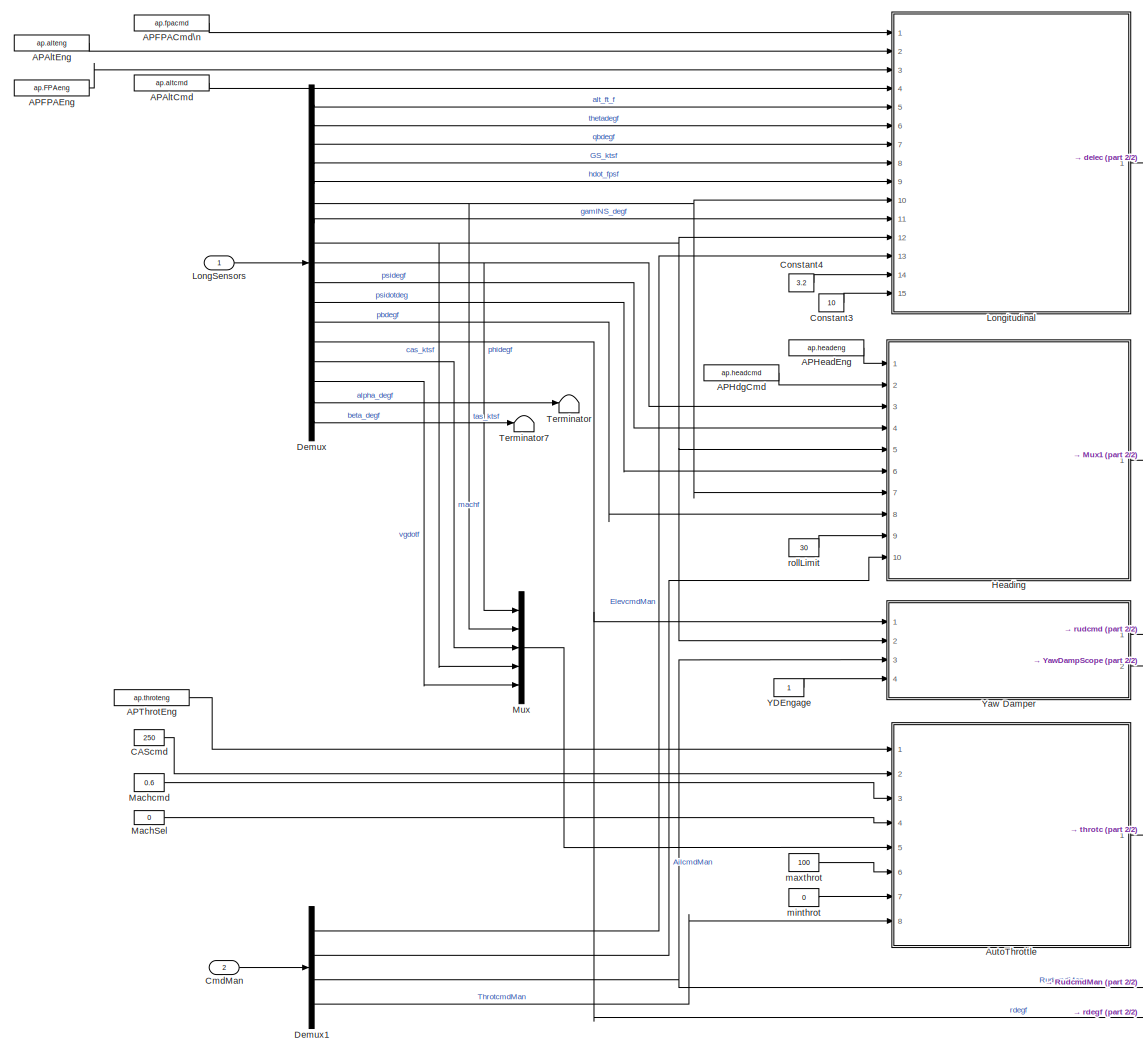
[diagram: root canvas - part 1/2, most of the canvas]
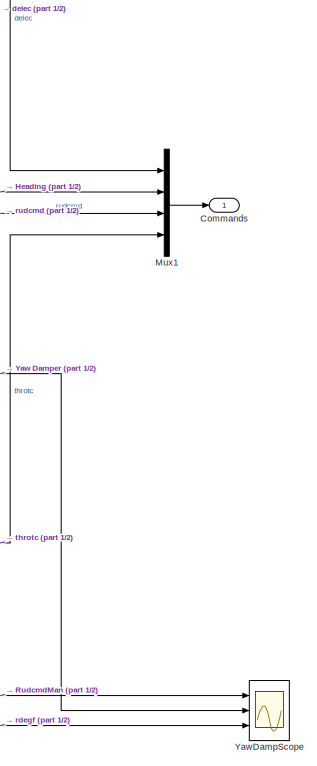
[diagram: root canvas - part 2/2, middle right region]
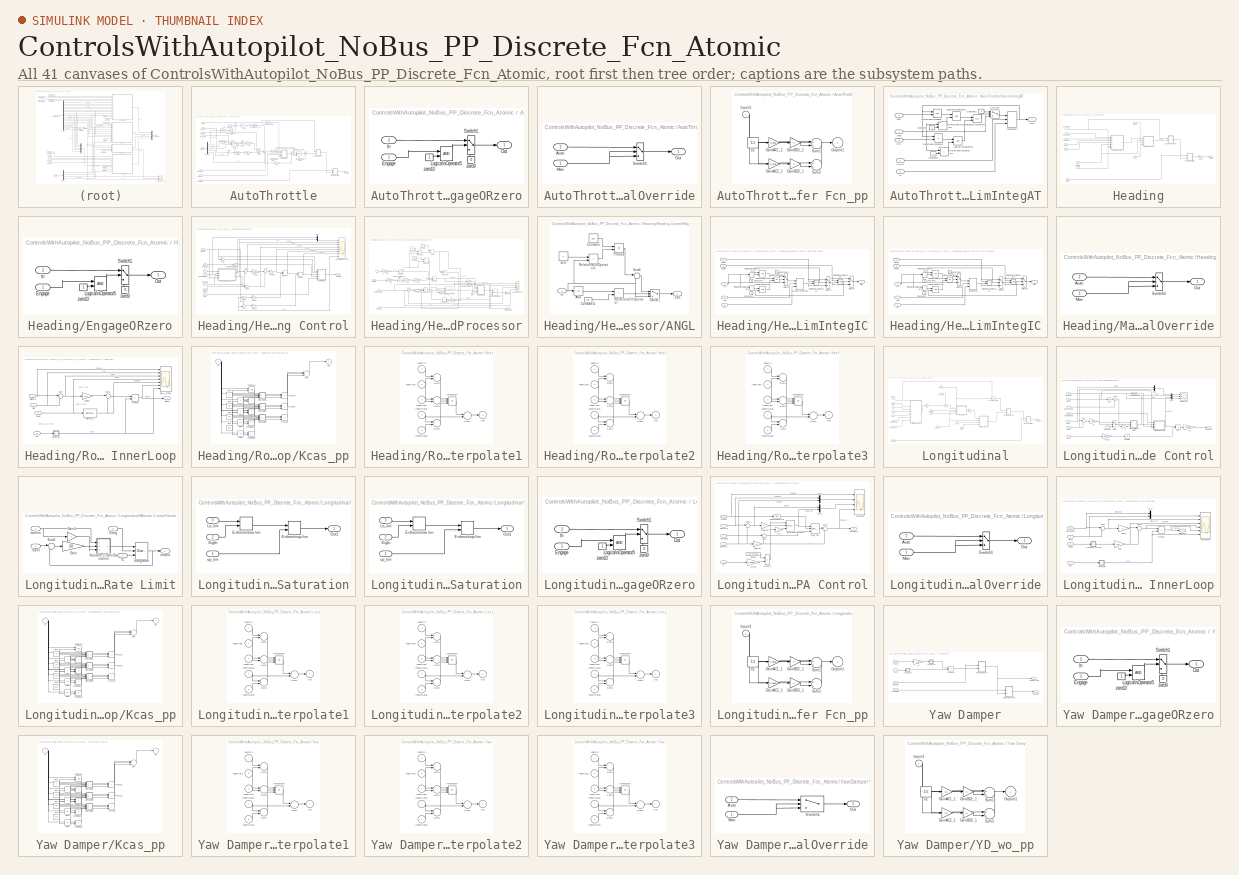
[diagram: thumbnail index - all 41 canvases of the model, root first then tree order]
MODEL ControlsWithAutopilot_NoBus_PP_Discrete_Fcn_Atomic
KIND model
BLOCK [Constant] APAltCmd
  SID = 3
  Value = ap.altcmd
BLOCK [Constant] APAltEng
  OutDataTypeStr = boolean
  SID = 4
  Value = ap.alteng
BLOCK [Constant] APFPACmd\n
  SID = 5
  Value = ap.fpacmd
BLOCK [Constant] APFPAEng
  OutDataTypeStr = boolean
  SID = 6
  Value = ap.FPAeng
BLOCK [Constant] APHdgCmd
  SID = 7
  Value = ap.headcmd
BLOCK [Constant] APHeadEng
  OutDataTypeStr = boolean
  SID = 8
  Value = ap.headeng
BLOCK [Constant] APThrotEng
  OutDataTypeStr = boolean
  SID = 9
  Value = ap.throteng
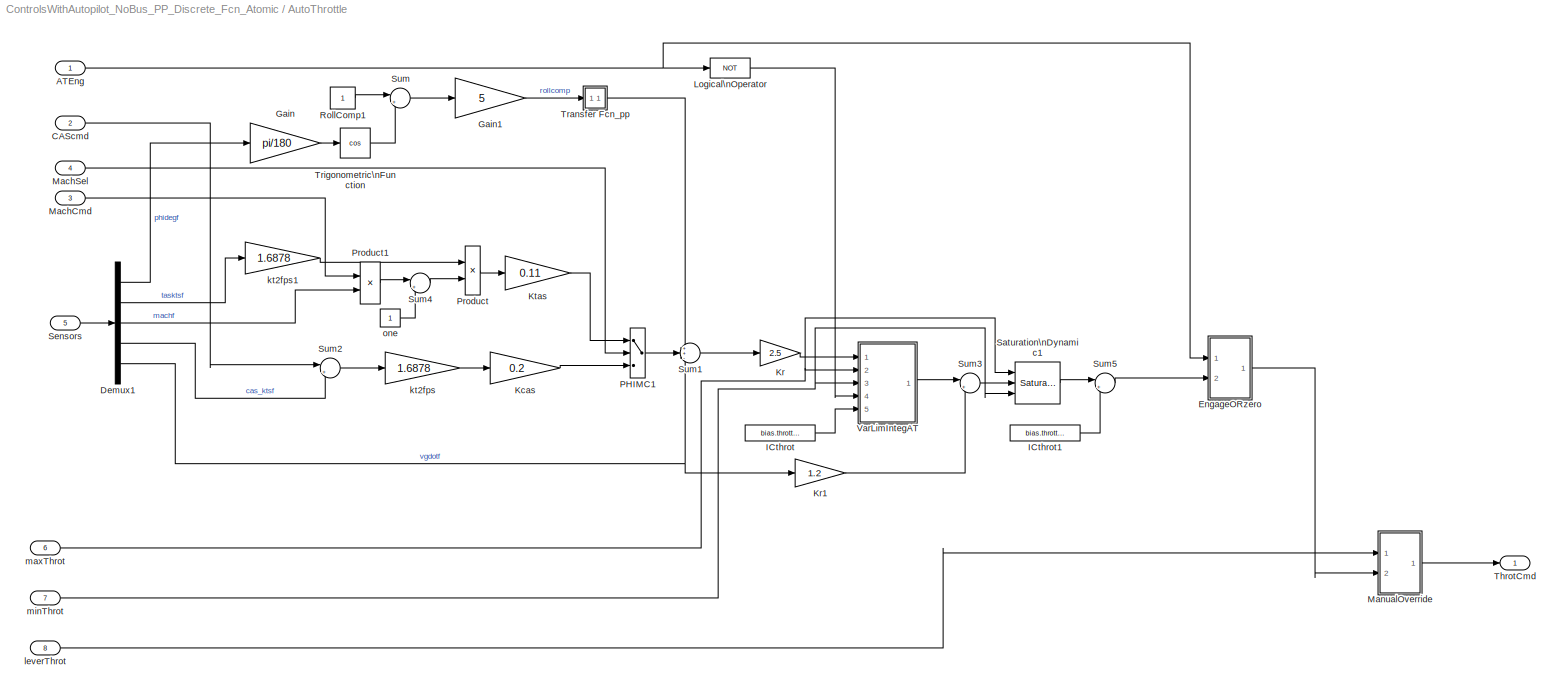
BLOCK [SubSystem] AutoThrottle
  Ports = [8, 1]
  RequestExecContextInheritance = off
  SID = 10
  TreatAsAtomicUnit = on
  Variant = off
BLOCK [Inport] AutoThrottle/ATEng
  IconDisplay = Port number
  SID = 11
BLOCK [Inport] AutoThrottle/CAScmd
  IconDisplay = Port number
  Port = 2
  SID = 12
BLOCK [Demux] AutoThrottle/Demux1
  DisplayOption = bar
  Outputs = 5
  Ports = [1, 5]
  SID = 19
BLOCK [SubSystem] AutoThrottle/EngageORzero
  Ports = [2, 1]
  RequestExecContextInheritance = off
  SID = 20
  Variant = off
BLOCK [Inport] AutoThrottle/EngageORzero/Engage
  IconDisplay = Port number
  SID = 21
BLOCK [Inport] AutoThrottle/EngageORzero/In
  IconDisplay = Port number
  Port = 2
  SID = 22
BLOCK [Logic] AutoThrottle/EngageORzero/Logical\nOperator5
  AllPortsSameDT = off
  OutDataTypeStr = boolean
  Ports = [2, 1]
  SID = 23
BLOCK [Outport] AutoThrottle/EngageORzero/Out
  IconDisplay = Port number
  SID = 27
BLOCK [Switch] AutoThrottle/EngageORzero/Switch1
  InputSameDT = off
  SID = 24
  SaturateOnIntegerOverflow = off
  Threshold = 0.5
BLOCK [Constant] AutoThrottle/EngageORzero/zero10
  SID = 25
BLOCK [Constant] AutoThrottle/EngageORzero/zero9
  SID = 26
  Value = 0
BLOCK [Gain] AutoThrottle/Gain
  Gain = pi/180
  OutDataTypeStr = Inherit: Inherit via internal rule
  ParamDataTypeStr = Inherit: Inherit via internal rule
  SID = 28
  SaturateOnIntegerOverflow = off
BLOCK [Gain] AutoThrottle/Gain1
  Gain = 5
  OutDataTypeStr = Inherit: Inherit via internal rule
  ParamDataTypeStr = Inherit: Inherit via internal rule
  SID = 29
  SaturateOnIntegerOverflow = off
BLOCK [Constant] AutoThrottle/ICthrot
  SID = 30
  SampleTime = -1
  Value = bias.throttle
BLOCK [Constant] AutoThrottle/ICthrot1
  SID = 31
  SampleTime = -1
  Value = bias.throttle
BLOCK [Gain] AutoThrottle/Kcas
  Gain = 0.2
  OutDataTypeStr = Inherit: Inherit via internal rule
  ParamDataTypeStr = Inherit: Inherit via internal rule
  SID = 32
  SaturateOnIntegerOverflow = off
BLOCK [Gain] AutoThrottle/Kr
  Gain = 2.5
  OutDataTypeStr = Inherit: Inherit via internal rule
  ParamDataTypeStr = Inherit: Inherit via internal rule
  SID = 33
  SaturateOnIntegerOverflow = off
BLOCK [Gain] AutoThrottle/Kr1
  Gain = 1.2
  OutDataTypeStr = Inherit: Inherit via internal rule
  ParamDataTypeStr = Inherit: Inherit via internal rule
  SID = 34
  SaturateOnIntegerOverflow = off
BLOCK [Gain] AutoThrottle/Ktas
  Gain = 0.11
  OutDataTypeStr = Inherit: Inherit via internal rule
  ParamDataTypeStr = Inherit: Inherit via internal rule
  SID = 35
  SaturateOnIntegerOverflow = off
BLOCK [Logic] AutoThrottle/Logical\nOperator
  AllPortsSameDT = off
  Operator = NOT
  OutDataTypeStr = boolean
  Ports = [1, 1]
  SID = 36
BLOCK [Inport] AutoThrottle/MachCmd
  IconDisplay = Port number
  Port = 3
  SID = 13
BLOCK [Inport] AutoThrottle/MachSel
  IconDisplay = Port number
  Port = 4
  SID = 14
BLOCK [SubSystem] AutoThrottle/ManualOverride
  Ports = [2, 1]
  RequestExecContextInheritance = off
  SID = 37
  Variant = off
BLOCK [Inport] AutoThrottle/ManualOverride/Auto
  IconDisplay = Port number
  Port = 2
  SID = 39
BLOCK [Inport] AutoThrottle/ManualOverride/Man
  IconDisplay = Port number
  SID = 38
BLOCK [Outport] AutoThrottle/ManualOverride/Out
  IconDisplay = Port number
  SID = 41
BLOCK [Switch] AutoThrottle/ManualOverride/Switch1
  Criteria = u2 ~= 0
  InputSameDT = off
  SID = 40
  SaturateOnIntegerOverflow = off
  Threshold = 0.5
BLOCK [Switch] AutoThrottle/PHIMC1
  InputSameDT = off
  SID = 42
  SampleTime = 0.02
  Threshold = 0.5
BLOCK [Product] AutoThrottle/Product
  InputSameDT = off
  OutDataTypeStr = Inherit: Inherit via internal rule
  Ports = [2, 1]
  SID = 43
  SaturateOnIntegerOverflow = off
BLOCK [Product] AutoThrottle/Product1
  InputSameDT = off
  Inputs = */
  OutDataTypeStr = Inherit: Inherit via internal rule
  Ports = [2, 1]
  SID = 44
  SaturateOnIntegerOverflow = off
BLOCK [Constant] AutoThrottle/RollComp1
  SID = 45
  SampleTime = -1
BLOCK [Reference] AutoThrottle/Saturation\nDynamic1  REF=simulink/Discontinuities/Saturation\nDynamic
  DoSatur = off
  LockScale = off
  OutDataType = sfix(16)
  OutDataTypeStr = Inherit: Same as second input
  OutMax = []
  OutMin = []
  OutScaling = 2^-10
  OutputDataTypeScalingMode = Same as second input
  Ports = [3, 1]
  RndMeth = Floor
  SID = 46
  SourceBlock = simulink/Discontinuities/Saturation\nDynamic
  SourceType = Saturation Dynamic
BLOCK [Inport] AutoThrottle/Sensors
  IconDisplay = Port number
  Port = 5
  SID = 15
BLOCK [Sum] AutoThrottle/Sum
  IconShape = round
  InputSameDT = off
  Inputs = |+-
  OutDataTypeStr = Inherit: Inherit via internal rule
  Ports = [2, 1]
  SID = 47
  SaturateOnIntegerOverflow = off
BLOCK [Sum] AutoThrottle/Sum1
  IconShape = round
  InputSameDT = off
  Inputs = ++-
  OutDataTypeStr = Inherit: Inherit via internal rule
  Ports = [3, 1]
  SID = 48
  SaturateOnIntegerOverflow = off
BLOCK [Sum] AutoThrottle/Sum2
  IconShape = round
  InputSameDT = off
  Inputs = |+-
  OutDataTypeStr = Inherit: Inherit via internal rule
  Ports = [2, 1]
  SID = 49
  SaturateOnIntegerOverflow = off
BLOCK [Sum] AutoThrottle/Sum3
  IconShape = round
  InputSameDT = off
  Inputs = |+-
  OutDataTypeStr = Inherit: Inherit via internal rule
  Ports = [2, 1]
  SID = 50
  SaturateOnIntegerOverflow = off
BLOCK [Sum] AutoThrottle/Sum4
  IconShape = round
  InputSameDT = off
  Inputs = |+-
  OutDataTypeStr = Inherit: Inherit via internal rule
  Ports = [2, 1]
  SID = 51
  SaturateOnIntegerOverflow = off
BLOCK [Sum] AutoThrottle/Sum5
  IconShape = round
  InputSameDT = off
  Inputs = |+-
  OutDataTypeStr = Inherit: Inherit via internal rule
  Ports = [2, 1]
  SID = 52
  SaturateOnIntegerOverflow = off
BLOCK [Outport] AutoThrottle/ThrotCmd
  IconDisplay = Port number
  SID = 86
BLOCK [SubSystem] AutoThrottle/Transfer Fcn_pp
  Ports = [1, 1]
  RequestExecContextInheritance = off
  SID = 53
  TreatAsAtomicUnit = on
  Variant = off
BLOCK [UnitDelay] AutoThrottle/Transfer Fcn_pp/D1
  SID = 55
  SampleTime = -1
BLOCK [Gain] AutoThrottle/Transfer Fcn_pp/GainAC1_1
  Gain = -0.0625
  SID = 56
BLOCK [Gain] AutoThrottle/Transfer Fcn_pp/GainAC2_1
  Gain = -0.0625
  SID = 57
BLOCK [Gain] AutoThrottle/Transfer Fcn_pp/GainBD1_1
  SID = 58
BLOCK [Gain] AutoThrottle/Transfer Fcn_pp/GainBD2_1
  SID = 59
BLOCK [Inport] AutoThrottle/Transfer Fcn_pp/Inport1
  IconDisplay = Port number
  SID = 54
BLOCK [Outport] AutoThrottle/Transfer Fcn_pp/Outport1
  IconDisplay = Port number
  SID = 62
BLOCK [Sum] AutoThrottle/Transfer Fcn_pp/Sum1
  Ports = [2, 1]
  SID = 60
BLOCK [Sum] AutoThrottle/Transfer Fcn_pp/Sum2
  Ports = [2, 1]
  SID = 61
BLOCK [Trigonometry] AutoThrottle/Trigonometric\nFunction
  Operator = cos
  Ports = [1, 1]
  SID = 63
BLOCK [SubSystem] AutoThrottle/VarLimIntegAT
  Ports = [5, 1]
  RequestExecContextInheritance = off
  SID = 64
  TreatAsAtomicUnit = on
  Variant = off
BLOCK [Constant] AutoThrottle/VarLimIntegAT/Constant1
  SID = 70
  SampleTime = -1
  Value = 0
BLOCK [Constant] AutoThrottle/VarLimIntegAT/Constant2
  SID = 71
  SampleTime = -1
  Value = 0
BLOCK [Constant] AutoThrottle/VarLimIntegAT/Constant3
  SID = 72
  SampleTime = -1
  Value = 0
BLOCK [Inport] AutoThrottle/VarLimIntegAT/IC
  IconDisplay = Port number
  Port = 5
  SID = 69
BLOCK [Inport] AutoThrottle/VarLimIntegAT/ICtrig
  IconDisplay = Port number
  Port = 4
  SID = 68
BLOCK [Inport] AutoThrottle/VarLimIntegAT/Input
  IconDisplay = Port number
  SID = 65
BLOCK [DiscreteIntegrator] AutoThrottle/VarLimIntegAT/Integrator1
  ExternalReset = level
  ICPrevOutput = DiscIntNeverNeededParam
  ICPrevScaledInput = DiscIntNeverNeededParam
  InitialConditionSource = external
  Ports = [3, 1]
  SID = 73
  SampleTime = 1.0
BLOCK [Logic] AutoThrottle/VarLimIntegAT/Logical\nOperator1
  Operator = OR
  Ports = [2, 1]
  SID = 74
BLOCK [Logic] AutoThrottle/VarLimIntegAT/Logical\nOperator2
  Ports = [2, 1]
  SID = 75
BLOCK [Logic] AutoThrottle/VarLimIntegAT/Logical\nOperator3
  Ports = [2, 1]
  SID = 76
BLOCK [Inport] AutoThrottle/VarLimIntegAT/Max
  IconDisplay = Port number
  Port = 2
  SID = 66
BLOCK [Inport] AutoThrottle/VarLimIntegAT/Min
  IconDisplay = Port number
  Port = 3
  SID = 67
BLOCK [Outport] AutoThrottle/VarLimIntegAT/Out
  IconDisplay = Port number
  SID = 82
BLOCK [RelationalOperator] AutoThrottle/VarLimIntegAT/Relational\nOperator1
  Operator = <=
  Ports = [2, 1]
  SID = 77
BLOCK [RelationalOperator] AutoThrottle/VarLimIntegAT/Relational\nOperator2
  Ports = [2, 1]
  SID = 78
BLOCK [RelationalOperator] AutoThrottle/VarLimIntegAT/Relational\nOperator3
  Operator = >
  Ports = [2, 1]
  SID = 79
BLOCK [RelationalOperator] AutoThrottle/VarLimIntegAT/Relational\nOperator4
  Operator = <
  Ports = [2, 1]
  SID = 80
BLOCK [Switch] AutoThrottle/VarLimIntegAT/Switch1
  SID = 81
  Threshold = 0.1
BLOCK [Gain] AutoThrottle/kt2fps
  Gain = 1.6878
  OutDataTypeStr = Inherit: Inherit via internal rule
  ParamDataTypeStr = Inherit: Inherit via internal rule
  SID = 83
  SaturateOnIntegerOverflow = off
BLOCK [Gain] AutoThrottle/kt2fps1
  Gain = 1.6878
  OutDataTypeStr = Inherit: Inherit via internal rule
  ParamDataTypeStr = Inherit: Inherit via internal rule
  SID = 84
  SaturateOnIntegerOverflow = off
BLOCK [Inport] AutoThrottle/leverThrot
  IconDisplay = Port number
  Port = 8
  SID = 18
BLOCK [Inport] AutoThrottle/maxThrot
  IconDisplay = Port number
  Port = 6
  SID = 16
BLOCK [Inport] AutoThrottle/minThrot
  IconDisplay = Port number
  Port = 7
  SID = 17
BLOCK [Constant] AutoThrottle/one
  SID = 85
  SampleTime = -1
BLOCK [Constant] CAScmd
  SID = 87
  Value = 250
BLOCK [Inport] CmdMan
  IconDisplay = Port number
  Port = 2
  PortDimensions = 9
  SID = 2
BLOCK [Outport] Commands
  IconDisplay = Port number
  SID = 585
BLOCK [Constant] Constant3
  SID = 88
  Value = 10
BLOCK [Constant] Constant4
  SID = 89
  Value = 3.2
BLOCK [Demux] Demux
  DisplayOption = bar
  Outputs = 17
  Ports = [1, 17]
  SID = 90
BLOCK [Demux] Demux1
  DisplayOption = bar
  Ports = [1, 4]
  SID = 91
BLOCK [SubSystem] Heading
  Ports = [10, 1]
  RequestExecContextInheritance = off
  SID = 92
  TreatAsAtomicUnit = on
  Variant = off
BLOCK [Outport] Heading/AilCmd
  IconDisplay = Port number
  SID = 300
BLOCK [Inport] Heading/AilStick
  IconDisplay = Port number
  Port = 10
  SID = 102
BLOCK [Inport] Heading/CAS
  IconDisplay = Port number
  Port = 5
  SID = 97
BLOCK [SubSystem] Heading/EngageORzero
  Ports = [2, 1]
  RequestExecContextInheritance = off
  SID = 103
  Variant = off
BLOCK [Inport] Heading/EngageORzero/Engage
  IconDisplay = Port number
  SID = 104
BLOCK [Inport] Heading/EngageORzero/In
  IconDisplay = Port number
  Port = 2
  SID = 105
BLOCK [Logic] Heading/EngageORzero/Logical\nOperator5
  AllPortsSameDT = off
  OutDataTypeStr = boolean
  Ports = [2, 1]
  SID = 106
BLOCK [Outport] Heading/EngageORzero/Out
  IconDisplay = Port number
  SID = 110
BLOCK [Switch] Heading/EngageORzero/Switch1
  InputSameDT = off
  SID = 107
  SaturateOnIntegerOverflow = off
  Threshold = 0.5
BLOCK [Constant] Heading/EngageORzero/zero10
  SID = 108
BLOCK [Constant] Heading/EngageORzero/zero9
  SID = 109
  Value = 0
BLOCK [Gain] Heading/Gain1
  Gain = -1
  SID = 111
BLOCK [Inport] Heading/HeadCmd
  IconDisplay = Port number
  Port = 2
  SID = 94
BLOCK [Inport] Heading/HeadEng
  IconDisplay = Port number
  SID = 93
BLOCK [Inport] Heading/Heading
  IconDisplay = Port number
  Port = 4
  SID = 96
BLOCK [SubSystem] Heading/Heading Control
  Ports = [7, 1]
  RequestExecContextInheritance = off
  SID = 112
  TreatAsAtomicUnit = on
  Variant = off
BLOCK [Inport] Heading/Heading Control/HdgCmdMCP
  IconDisplay = Port number
  SID = 113
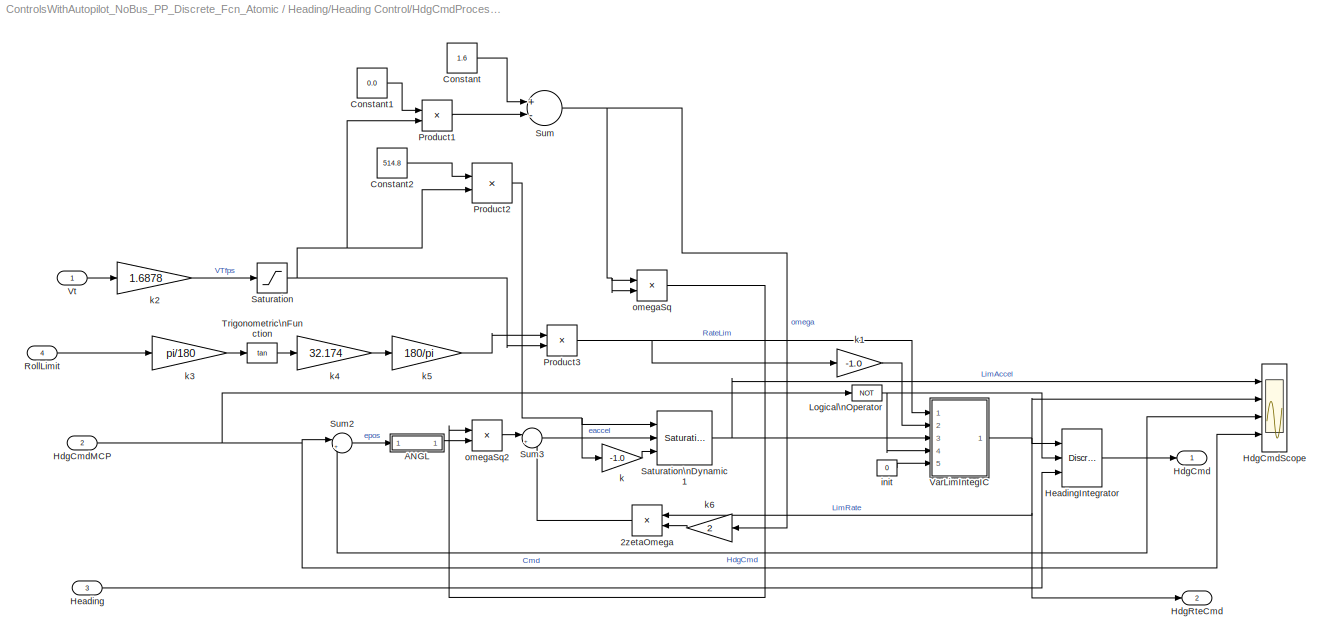
BLOCK [SubSystem] Heading/Heading Control/HdgCmdProcessor
  Ports = [4, 2]
  RequestExecContextInheritance = off
  SID = 120
  Variant = off
BLOCK [Product] Heading/Heading Control/HdgCmdProcessor/2zetaOmega
  InputSameDT = off
  OutDataTypeStr = Inherit: Inherit via internal rule
  Ports = [2, 1]
  SID = 125
  SaturateOnIntegerOverflow = off
BLOCK [SubSystem] Heading/Heading Control/HdgCmdProcessor/ANGL
  Ports = [1, 1]
  RequestExecContextInheritance = off
  SID = 126
  Variant = off
BLOCK [Outport] Heading/Heading Control/HdgCmdProcessor/ANGL/180
  IconDisplay = Port number
  SID = 137
BLOCK [Abs] Heading/Heading Control/HdgCmdProcessor/ANGL/Abs
  SID = 128
  SaturateOnIntegerOverflow = off
BLOCK [Constant] Heading/Heading Control/HdgCmdProcessor/ANGL/Constant
  SID = 129
  Value = 360
BLOCK [Constant] Heading/Heading Control/HdgCmdProcessor/ANGL/Constant1
  SID = 130
  Value = 180
BLOCK [Product] Heading/Heading Control/HdgCmdProcessor/ANGL/Product
  InputSameDT = off
  OutDataTypeStr = Inherit: Inherit via internal rule
  Ports = [2, 1]
  SID = 131
  SaturateOnIntegerOverflow = off
BLOCK [RelationalOperator] Heading/Heading Control/HdgCmdProcessor/ANGL/Relational\nOperator
  InputSameDT = off
  Operator = >
  Ports = [2, 1]
  SID = 132
BLOCK [RelationalOperator] Heading/Heading Control/HdgCmdProcessor/ANGL/Relational\nOperator1
  InputSameDT = off
  Operator = <
  OutDataTypeStr = boolean
  Ports = [2, 1]
  SID = 133
BLOCK [Sum] Heading/Heading Control/HdgCmdProcessor/ANGL/Sum6
  IconShape = round
  InputSameDT = off
  Inputs = |-+
  OutDataTypeStr = Inherit: Inherit via internal rule
  Ports = [2, 1]
  SID = 134
BLOCK [Switch] Heading/Heading Control/HdgCmdProcessor/ANGL/Switch1
  InputSameDT = off
  SID = 135
  Threshold = 0.1
BLOCK [Inport] Heading/Heading Control/HdgCmdProcessor/ANGL/in
  IconDisplay = Port number
  SID = 127
BLOCK [Constant] Heading/Heading Control/HdgCmdProcessor/ANGL/zero
  SID = 136
  Value = 0
BLOCK [Constant] Heading/Heading Control/HdgCmdProcessor/Constant
  SID = 138
  Value = 1.6
BLOCK [Constant] Heading/Heading Control/HdgCmdProcessor/Constant1
  SID = 139
  Value = 0.0
BLOCK [Constant] Heading/Heading Control/HdgCmdProcessor/Constant2
  SID = 140
  Value = 514.8
BLOCK [Outport] Heading/Heading Control/HdgCmdProcessor/HdgCmd
  IconDisplay = Port number
  SID = 184
BLOCK [Inport] Heading/Heading Control/HdgCmdProcessor/HdgCmdMCP
  IconDisplay = Port number
  Port = 2
  SID = 122
BLOCK [Scope] Heading/Heading Control/HdgCmdProcessor/HdgCmdScope
  NumInputPorts = 4
  Ports = [4]
  SID = 141
  ScopeSpecificationString = C++SS(StrPVP('Location','[661, 662, 1361, 1168]'),StrPVP('Open','off'),MxPVP('AxesTitles',24,'struct(''axes1'',''%<SignalLabel>'',''axes2'',''%<SignalLabel>'',''axes3'',''%<SignalLabel>'',''axes4'',''%<SignalLabel>'')'),StrPVP('YMin','-2~-4~-40~-40'),StrPVP('YMax','2~4~40~40'),StrPVP('SaveName','ScopeData6'),StrPVP('DataFormat','StructureWithTime'),StrPVP('LimitDataPoints','off'),StrPVP('BlockPara...<+81ch>
BLOCK [Outport] Heading/Heading Control/HdgCmdProcessor/HdgRteCmd
  IconDisplay = Port number
  Port = 2
  SID = 185
BLOCK [Inport] Heading/Heading Control/HdgCmdProcessor/Heading
  IconDisplay = Port number
  Port = 3
  SID = 123
BLOCK [DiscreteIntegrator] Heading/Heading Control/HdgCmdProcessor/HeadingIntegrator
  ExternalReset = level
  ICPrevOutput = DiscIntNeverNeededParam
  ICPrevScaledInput = DiscIntNeverNeededParam
  InitialConditionSource = external
  Ports = [3, 1]
  SID = 142
  SampleTime = 1.0
BLOCK [Logic] Heading/Heading Control/HdgCmdProcessor/Logical\nOperator
  AllPortsSameDT = off
  Operator = NOT
  OutDataTypeStr = boolean
  Ports = [1, 1]
  SID = 143
BLOCK [Product] Heading/Heading Control/HdgCmdProcessor/Product1
  InputSameDT = off
  OutDataTypeStr = Inherit: Inherit via internal rule
  Ports = [2, 1]
  SID = 144
  SaturateOnIntegerOverflow = off
BLOCK [Product] Heading/Heading Control/HdgCmdProcessor/Product2
  InputSameDT = off
  Inputs = */
  OutDataTypeStr = Inherit: Inherit via internal rule
  Ports = [2, 1]
  SID = 145
  SaturateOnIntegerOverflow = off
BLOCK [Product] Heading/Heading Control/HdgCmdProcessor/Product3
  InputSameDT = off
  Inputs = /*
  OutDataTypeStr = Inherit: Inherit via internal rule
  Ports = [2, 1]
  SID = 146
  SaturateOnIntegerOverflow = off
BLOCK [Inport] Heading/Heading Control/HdgCmdProcessor/RollLimit
  IconDisplay = Port number
  Port = 4
  SID = 124
BLOCK [Saturate] Heading/Heading Control/HdgCmdProcessor/Saturation
  InputPortMap = u0
  LowerLimit = 0.0001
  Ports = [1, 1]
  SID = 147
  UpperLimit = 1000
BLOCK [Reference] Heading/Heading Control/HdgCmdProcessor/Saturation\nDynamic1  REF=simulink/Discontinuities/Saturation\nDynamic
  DoSatur = off
  LockScale = off
  OutDataType = fixdt(1, 16)
  OutDataTypeStr = Inherit: Same as second input
  OutMax = []
  OutMin = []
  OutScaling = 2^-10
  OutputDataTypeScalingMode = Same as second input
  Ports = [3, 1]
  RndMeth = Floor
  SID = 148
  SourceBlock = simulink/Discontinuities/Saturation\nDynamic
  SourceType = Saturation Dynamic
BLOCK [Sum] Heading/Heading Control/HdgCmdProcessor/Sum
  InputSameDT = off
  Inputs = +-
  OutDataTypeStr = Inherit: Inherit via internal rule
  Ports = [2, 1]
  SID = 149
  SaturateOnIntegerOverflow = off
BLOCK [Sum] Heading/Heading Control/HdgCmdProcessor/Sum2
  IconShape = round
  InputSameDT = off
  Inputs = |+-
  OutDataTypeStr = Inherit: Inherit via internal rule
  Ports = [2, 1]
  SID = 150
  SaturateOnIntegerOverflow = off
BLOCK [Sum] Heading/Heading Control/HdgCmdProcessor/Sum3
  IconShape = round
  InputSameDT = off
  Inputs = |+-
  OutDataTypeStr = Inherit: Inherit via internal rule
  Ports = [2, 1]
  SID = 151
  SaturateOnIntegerOverflow = off
BLOCK [Trigonometry] Heading/Heading Control/HdgCmdProcessor/Trigonometric\nFunction
  Operator = tan
  Ports = [1, 1]
  SID = 152
BLOCK [SubSystem] Heading/Heading Control/HdgCmdProcessor/VarLimIntegIC
  Ports = [5, 1]
  RequestExecContextInheritance = off
  SID = 153
  TreatAsAtomicUnit = on
  Variant = off
BLOCK [Constant] Heading/Heading Control/HdgCmdProcessor/VarLimIntegIC/Constant1
  SID = 159
  Value = 0
BLOCK [Constant] Heading/Heading Control/HdgCmdProcessor/VarLimIntegIC/Constant2
  SID = 160
  Value = 0
BLOCK [Constant] Heading/Heading Control/HdgCmdProcessor/VarLimIntegIC/Constant3
  SID = 161
  Value = 0
BLOCK [Inport] Heading/Heading Control/HdgCmdProcessor/VarLimIntegIC/IC
  IconDisplay = Port number
  Port = 5
  SID = 158
BLOCK [Inport] Heading/Heading Control/HdgCmdProcessor/VarLimIntegIC/In
  IconDisplay = Port number
  Port = 3
  SID = 156
BLOCK [Inport] Heading/Heading Control/HdgCmdProcessor/VarLimIntegIC/LoLim
  IconDisplay = Port number
  Port = 2
  SID = 155
BLOCK [Logic] Heading/Heading Control/HdgCmdProcessor/VarLimIntegIC/Logical\nOperator
  AllPortsSameDT = off
  Ports = [2, 1]
  SID = 163
BLOCK [Logic] Heading/Heading Control/HdgCmdProcessor/VarLimIntegIC/Logical\nOperator1
  AllPortsSameDT = off
  Ports = [2, 1]
  SID = 164
BLOCK [Logic] Heading/Heading Control/HdgCmdProcessor/VarLimIntegIC/Logical\nOperator2
  AllPortsSameDT = off
  Operator = OR
  Ports = [2, 1]
  SID = 165
BLOCK [Outport] Heading/Heading Control/HdgCmdProcessor/VarLimIntegIC/Out
  IconDisplay = Port number
  SID = 173
BLOCK [RelationalOperator] Heading/Heading Control/HdgCmdProcessor/VarLimIntegIC/Relational\nOperator
  InputSameDT = off
  Operator = <=
  Ports = [2, 1]
  SID = 166
BLOCK [RelationalOperator] Heading/Heading Control/HdgCmdProcessor/VarLimIntegIC/Relational\nOperator1
  InputSameDT = off
  Ports = [2, 1]
  SID = 167
BLOCK [RelationalOperator] Heading/Heading Control/HdgCmdProcessor/VarLimIntegIC/Relational\nOperator2
  InputSameDT = off
  Operator = >
  Ports = [2, 1]
  SID = 168
BLOCK [RelationalOperator] Heading/Heading Control/HdgCmdProcessor/VarLimIntegIC/Relational\nOperator3
  InputSameDT = off
  Operator = <
  Ports = [2, 1]
  SID = 169
BLOCK [Switch] Heading/Heading Control/HdgCmdProcessor/VarLimIntegIC/Switch1
  SID = 170
  Threshold = 0.5
BLOCK [Switch] Heading/Heading Control/HdgCmdProcessor/VarLimIntegIC/Switch2
  SID = 171
  Threshold = 0.5
BLOCK [Switch] Heading/Heading Control/HdgCmdProcessor/VarLimIntegIC/Switch3
  SID = 172
  Threshold = 0.5
BLOCK [Inport] Heading/Heading Control/HdgCmdProcessor/VarLimIntegIC/Trig
  IconDisplay = Port number
  Port = 4
  SID = 157
BLOCK [Inport] Heading/Heading Control/HdgCmdProcessor/VarLimIntegIC/UpLim
  IconDisplay = Port number
  SID = 154
BLOCK [DiscreteIntegrator] Heading/Heading Control/HdgCmdProcessor/VarLimIntegIC/VarLimitIntegrator
  ExternalReset = level
  ICPrevOutput = DiscIntNeverNeededParam
  ICPrevScaledInput = DiscIntNeverNeededParam
  InitialConditionSource = external
  Ports = [3, 1]
  SID = 162
  SampleTime = 1.0
BLOCK [Inport] Heading/Heading Control/HdgCmdProcessor/Vt
  IconDisplay = Port number
  SID = 121
BLOCK [Constant] Heading/Heading Control/HdgCmdProcessor/init
  SID = 174
  Value = 0
BLOCK [Gain] Heading/Heading Control/HdgCmdProcessor/k
  Gain = -1.0
  OutDataTypeStr = Inherit: Inherit via internal rule
  ParamDataTypeStr = Inherit: Inherit via internal rule
  SID = 175
  SaturateOnIntegerOverflow = off
BLOCK [Gain] Heading/Heading Control/HdgCmdProcessor/k1
  Gain = -1.0
  OutDataTypeStr = Inherit: Inherit via internal rule
  ParamDataTypeStr = Inherit: Inherit via internal rule
  SID = 176
  SaturateOnIntegerOverflow = off
BLOCK [Gain] Heading/Heading Control/HdgCmdProcessor/k2
  Gain = 1.6878
  OutDataTypeStr = Inherit: Inherit via internal rule
  ParamDataTypeStr = Inherit: Inherit via internal rule
  SID = 177
  SaturateOnIntegerOverflow = off
BLOCK [Gain] Heading/Heading Control/HdgCmdProcessor/k3
  Gain = pi/180
  OutDataTypeStr = Inherit: Inherit via internal rule
  ParamDataTypeStr = Inherit: Inherit via internal rule
  SID = 178
  SaturateOnIntegerOverflow = off
BLOCK [Gain] Heading/Heading Control/HdgCmdProcessor/k4
  Gain = 32.174
  OutDataTypeStr = Inherit: Inherit via internal rule
  ParamDataTypeStr = Inherit: Inherit via internal rule
  SID = 179
  SaturateOnIntegerOverflow = off
BLOCK [Gain] Heading/Heading Control/HdgCmdProcessor/k5
  Gain = 180/pi
  OutDataTypeStr = Inherit: Inherit via internal rule
  ParamDataTypeStr = Inherit: Inherit via internal rule
  SID = 180
  SaturateOnIntegerOverflow = off
BLOCK [Gain] Heading/Heading Control/HdgCmdProcessor/k6
  Gain = 2
  OutDataTypeStr = Inherit: Inherit via internal rule
  ParamDataTypeStr = Inherit: Inherit via internal rule
  SID = 181
  SaturateOnIntegerOverflow = off
BLOCK [Product] Heading/Heading Control/HdgCmdProcessor/omegaSq
  InputSameDT = off
  OutDataTypeStr = Inherit: Inherit via internal rule
  Ports = [2, 1]
  SID = 182
  SaturateOnIntegerOverflow = off
BLOCK [Product] Heading/Heading Control/HdgCmdProcessor/omegaSq2
  InputSameDT = off
  OutDataTypeStr = Inherit: Inherit via internal rule
  Ports = [2, 1]
  SID = 183
  SaturateOnIntegerOverflow = off
BLOCK [Scope] Heading/Heading Control/HdgRollCmdScope
  NumInputPorts = 8
  Ports = [8]
  SID = 186
  ScopeSpecificationString = C++SS(StrPVP('Location','[803, 84, 1609, 1060]'),StrPVP('Open','off'),MxPVP('AxesTitles',24,'struct(''axes1'',''HdgCmdMCP,  psic'',''axes2'',''%<SignalLabel>'',''axes3'',''%<SignalLabel>'',''axes4'',''%<SignalLabel>'',''axes5'',''%<SignalLabel>'',''axes6'',''%<SignalLabel>'',''axes7'',''%<SignalLabel>'',''axes8'',''%<SignalLabel>'')'),StrPVP('YMin','-30~-30~-10~-10~-4~-10~0~-5'),StrPVP('YMax','30~...<+223ch>
BLOCK [Inport] Heading/Heading Control/HeadEng
  IconDisplay = Port number
  Port = 6
  SID = 118
BLOCK [Inport] Heading/Heading Control/Heading
  IconDisplay = Port number
  Port = 2
  SID = 114
BLOCK [Gain] Heading/Heading Control/Khdg
  Gain = 0.05
  OutDataTypeStr = Inherit: Inherit via internal rule
  ParamDataTypeStr = Inherit: Inherit via internal rule
  SID = 187
  SaturateOnIntegerOverflow = off
BLOCK [Gain] Heading/Heading Control/Khdg1
  OutDataTypeStr = Inherit: Inherit via internal rule
  ParamDataTypeStr = Inherit: Inherit via internal rule
  SID = 188
  SaturateOnIntegerOverflow = off
BLOCK [Gain] Heading/Heading Control/Khdg2
  OutDataTypeStr = Inherit: Inherit via internal rule
  ParamDataTypeStr = Inherit: Inherit via internal rule
  SID = 189
  SaturateOnIntegerOverflow = off
BLOCK [Gain] Heading/Heading Control/Khdgrte
  Gain = 3
  OutDataTypeStr = Inherit: Inherit via internal rule
  ParamDataTypeStr = Inherit: Inherit via internal rule
  SID = 190
  SaturateOnIntegerOverflow = off
BLOCK [Logic] Heading/Heading Control/Logical\nOperator
  AllPortsSameDT = off
  Operator = NOT
  OutDataTypeStr = boolean
  Ports = [1, 1]
  SID = 191
BLOCK [MinMax] Heading/Heading Control/MinMax
  InputSameDT = off
  Inputs = 2
  Ports = [2, 1]
  SID = 192
  SaturateOnIntegerOverflow = off
BLOCK [MinMax] Heading/Heading Control/MinMax1
  Function = max
  InputSameDT = off
  Inputs = 2
  Ports = [2, 1]
  SID = 193
  SaturateOnIntegerOverflow = off
BLOCK [Mux] Heading/Heading Control/Mux
  DisplayOption = bar
  Inputs = 2
  Ports = [2, 1]
  SID = 194
BLOCK [Inport] Heading/Heading Control/Roll
  IconDisplay = Port number
  Port = 5
  SID = 117
BLOCK [Outport] Heading/Heading Control/RollCmd
  IconDisplay = Port number
  SID = 222
BLOCK [Inport] Heading/Heading Control/RollLimit
  IconDisplay = Port number
  Port = 7
  SID = 119
BLOCK [Sum] Heading/Heading Control/Sum
  IconShape = round
  InputSameDT = off
  Inputs = |+-
  OutDataTypeStr = Inherit: Inherit via internal rule
  Ports = [2, 1]
  SID = 195
  SaturateOnIntegerOverflow = off
BLOCK [Sum] Heading/Heading Control/Sum1
  IconShape = round
  InputSameDT = off
  Inputs = |++
  OutDataTypeStr = Inherit: Inherit via internal rule
  Ports = [2, 1]
  SID = 196
  SaturateOnIntegerOverflow = off
BLOCK [Sum] Heading/Heading Control/Sum2
  IconShape = round
  InputSameDT = off
  Inputs = |+-
  OutDataTypeStr = Inherit: Inherit via internal rule
  Ports = [2, 1]
  SID = 197
  SaturateOnIntegerOverflow = off
BLOCK [Sum] Heading/Heading Control/Sum3
  IconShape = round
  InputSameDT = off
  Inputs = |--
  OutDataTypeStr = Inherit: Inherit via internal rule
  Ports = [2, 1]
  SID = 198
  SaturateOnIntegerOverflow = off
BLOCK [Sum] Heading/Heading Control/Sum4
  IconShape = round
  InputSameDT = off
  Inputs = +-|
  OutDataTypeStr = Inherit: Inherit via internal rule
  Ports = [2, 1]
  SID = 199
  SaturateOnIntegerOverflow = off
BLOCK [SubSystem] Heading/Heading Control/VarLimIntegIC
  Ports = [5, 1]
  RequestExecContextInheritance = off
  SID = 200
  Variant = off
BLOCK [Constant] Heading/Heading Control/VarLimIntegIC/Constant1
  SID = 206
  Value = 0
BLOCK [Constant] Heading/Heading Control/VarLimIntegIC/Constant2
  SID = 207
  Value = 0
BLOCK [Constant] Heading/Heading Control/VarLimIntegIC/Constant3
  SID = 208
  Value = 0
BLOCK [Inport] Heading/Heading Control/VarLimIntegIC/IC
  IconDisplay = Port number
  Port = 5
  SID = 205
BLOCK [Inport] Heading/Heading Control/VarLimIntegIC/In
  IconDisplay = Port number
  Port = 3
  SID = 203
BLOCK [DiscreteIntegrator] Heading/Heading Control/VarLimIntegIC/Integrator
  ExternalReset = level
  ICPrevOutput = DiscIntNeverNeededParam
  ICPrevScaledInput = DiscIntNeverNeededParam
  InitialConditionSource = external
  Ports = [3, 1]
  SID = 209
  SampleTime = 1.0
BLOCK [Inport] Heading/Heading Control/VarLimIntegIC/LoLim
  IconDisplay = Port number
  Port = 2
  SID = 202
BLOCK [Logic] Heading/Heading Control/VarLimIntegIC/Logical\nOperator
  AllPortsSameDT = off
  Ports = [2, 1]
  SID = 210
BLOCK [Logic] Heading/Heading Control/VarLimIntegIC/Logical\nOperator1
  AllPortsSameDT = off
  Ports = [2, 1]
  SID = 211
BLOCK [Logic] Heading/Heading Control/VarLimIntegIC/Logical\nOperator2
  AllPortsSameDT = off
  Operator = OR
  Ports = [2, 1]
  SID = 212
BLOCK [Outport] Heading/Heading Control/VarLimIntegIC/Out
  IconDisplay = Port number
  SID = 220
BLOCK [RelationalOperator] Heading/Heading Control/VarLimIntegIC/Relational\nOperator
  InputSameDT = off
  Operator = <=
  Ports = [2, 1]
  SID = 213
BLOCK [RelationalOperator] Heading/Heading Control/VarLimIntegIC/Relational\nOperator1
  InputSameDT = off
  Ports = [2, 1]
  SID = 214
BLOCK [RelationalOperator] Heading/Heading Control/VarLimIntegIC/Relational\nOperator2
  InputSameDT = off
  Operator = >
  Ports = [2, 1]
  SID = 215
BLOCK [RelationalOperator] Heading/Heading Control/VarLimIntegIC/Relational\nOperator3
  InputSameDT = off
  Operator = <
  Ports = [2, 1]
  SID = 216
BLOCK [Switch] Heading/Heading Control/VarLimIntegIC/Switch1
  SID = 217
  Threshold = 0.5
BLOCK [Switch] Heading/Heading Control/VarLimIntegIC/Switch2
  SID = 218
  Threshold = 0.5
BLOCK [Switch] Heading/Heading Control/VarLimIntegIC/Switch3
  SID = 219
  Threshold = 0.5
BLOCK [Inport] Heading/Heading Control/VarLimIntegIC/Trig
  IconDisplay = Port number
  Port = 4
  SID = 204
BLOCK [Inport] Heading/Heading Control/VarLimIntegIC/UpLim
  IconDisplay = Port number
  SID = 201
BLOCK [Inport] Heading/Heading Control/Vt
  IconDisplay = Port number
  Port = 4
  SID = 116
BLOCK [Inport] Heading/Heading Control/psidot
  IconDisplay = Port number
  Port = 3
  SID = 115
BLOCK [Gain] Heading/Heading Control/sgn
  Gain = -1
  OutDataTypeStr = Inherit: Inherit via internal rule
  ParamDataTypeStr = Inherit: Inherit via internal rule
  SID = 221
  SaturateOnIntegerOverflow = off
BLOCK [SubSystem] Heading/ManualOverride
  Ports = [2, 1]
  RequestExecContextInheritance = off
  SID = 223
  Variant = off
BLOCK [Inport] Heading/ManualOverride/Auto
  IconDisplay = Port number
  Port = 2
  SID = 225
BLOCK [Inport] Heading/ManualOverride/Man
  IconDisplay = Port number
  SID = 224
BLOCK [Outport] Heading/ManualOverride/Out
  IconDisplay = Port number
  SID = 227
BLOCK [Switch] Heading/ManualOverride/Switch1
  Criteria = u2 ~= 0
  InputSameDT = off
  SID = 226
  SaturateOnIntegerOverflow = off
  Threshold = 0.5
BLOCK [Inport] Heading/Roll
  IconDisplay = Port number
  Port = 3
  SID = 95
BLOCK [SubSystem] Heading/Roll InnerLoop
  Ports = [4, 1]
  RequestExecContextInheritance = off
  SID = 228
  TreatAsAtomicUnit = on
  Variant = off
BLOCK [Outport] Heading/Roll InnerLoop/AilCmd
  IconDisplay = Port number
  SID = 296
BLOCK [Inport] Heading/Roll InnerLoop/CAS
  IconDisplay = Port number
  Port = 4
  SID = 232
BLOCK [SubSystem] Heading/Roll InnerLoop/Kcas_pp
  Ports = [1, 1]
  RequestExecContextInheritance = off
  SID = 233
  TreatAsAtomicUnit = on
  Variant = off
BLOCK [RelationalOperator] Heading/Roll InnerLoop/Kcas_pp/CompInfEq2
  Operator = <=
  Ports = [2, 1]
  SID = 235
BLOCK [RelationalOperator] Heading/Roll InnerLoop/Kcas_pp/CompInfEq3
  Operator = <=
  Ports = [2, 1]
  SID = 236
BLOCK [RelationalOperator] Heading/Roll InnerLoop/Kcas_pp/CompInfEq4
  Operator = <=
  Ports = [2, 1]
  SID = 237
BLOCK [RelationalOperator] Heading/Roll InnerLoop/Kcas_pp/CompSup1
  Ports = [2, 1]
  SID = 238
BLOCK [RelationalOperator] Heading/Roll InnerLoop/Kcas_pp/CompSup2
  Operator = >
  Ports = [2, 1]
  SID = 239
BLOCK [RelationalOperator] Heading/Roll InnerLoop/Kcas_pp/CompSup3
  Operator = >
  Ports = [2, 1]
  SID = 240
BLOCK [Constant] Heading/Roll InnerLoop/Kcas_pp/Data1
  SID = 241
BLOCK [Constant] Heading/Roll InnerLoop/Kcas_pp/Data2
  SID = 242
BLOCK [Constant] Heading/Roll InnerLoop/Kcas_pp/Data3
  SID = 243
  Value = 0.3
BLOCK [Constant] Heading/Roll InnerLoop/Kcas_pp/Data4
  SID = 244
  Value = 0.3
BLOCK [Constant] Heading/Roll InnerLoop/Kcas_pp/Idx1
  SID = 245
  Value = 0
BLOCK [Constant] Heading/Roll InnerLoop/Kcas_pp/Idx2
  SID = 246
  Value = 120
BLOCK [Constant] Heading/Roll InnerLoop/Kcas_pp/Idx3
  SID = 247
  Value = 350
BLOCK [Constant] Heading/Roll InnerLoop/Kcas_pp/Idx4
  SID = 248
  Value = 500
BLOCK [Inport] Heading/Roll InnerLoop/Kcas_pp/In
  IconDisplay = Port number
  SID = 234
BLOCK [SubSystem] Heading/Roll InnerLoop/Kcas_pp/Interpolate1
  Ports = [5, 1]
  RequestExecContextInheritance = off
  SID = 249
  Variant = off
BLOCK [Inport] Heading/Roll InnerLoop/Kcas_pp/Interpolate1/InportData1
  IconDisplay = Port number
  Port = 4
  SID = 253
BLOCK [Inport] Heading/Roll InnerLoop/Kcas_pp/Interpolate1/InportData2
  IconDisplay = Port number
  Port = 5
  SID = 254
BLOCK [Inport] Heading/Roll InnerLoop/Kcas_pp/Interpolate1/InportIdx1
  IconDisplay = Port number
  Port = 2
  SID = 251
BLOCK [Inport] Heading/Roll InnerLoop/Kcas_pp/Interpolate1/InportIdx2
  IconDisplay = Port number
  Port = 3
  SID = 252
BLOCK [Inport] Heading/Roll InnerLoop/Kcas_pp/Interpolate1/InportIn
  IconDisplay = Port number
  SID = 250
BLOCK [Product] Heading/Roll InnerLoop/Kcas_pp/Interpolate1/Interpolate
  Inputs = */*
  Ports = [3, 1]
  SID = 255
BLOCK [Outport] Heading/Roll InnerLoop/Kcas_pp/Interpolate1/Out
  IconDisplay = Port number
  SID = 260
BLOCK [Sum] Heading/Roll InnerLoop/Kcas_pp/Interpolate1/Sum1
  Inputs = +-
  Ports = [2, 1]
  SID = 256
BLOCK [Sum] Heading/Roll InnerLoop/Kcas_pp/Interpolate1/Sum2
  Inputs = -+
  Ports = [2, 1]
  SID = 257
BLOCK [Sum] Heading/Roll InnerLoop/Kcas_pp/Interpolate1/Sum3
  Inputs = -+
  Ports = [2, 1]
  SID = 258
BLOCK [Sum] Heading/Roll InnerLoop/Kcas_pp/Interpolate1/Sum4
  Ports = [2, 1]
  SID = 259
BLOCK [SubSystem] Heading/Roll InnerLoop/Kcas_pp/Interpolate2
  Ports = [5, 1]
  RequestExecContextInheritance = off
  SID = 261
  Variant = off
BLOCK [Inport] Heading/Roll InnerLoop/Kcas_pp/Interpolate2/InportData1
  IconDisplay = Port number
  Port = 4
  SID = 265
BLOCK [Inport] Heading/Roll InnerLoop/Kcas_pp/Interpolate2/InportData2
  IconDisplay = Port number
  Port = 5
  SID = 266
BLOCK [Inport] Heading/Roll InnerLoop/Kcas_pp/Interpolate2/InportIdx1
  IconDisplay = Port number
  Port = 2
  SID = 263
BLOCK [Inport] Heading/Roll InnerLoop/Kcas_pp/Interpolate2/InportIdx2
  IconDisplay = Port number
  Port = 3
  SID = 264
BLOCK [Inport] Heading/Roll InnerLoop/Kcas_pp/Interpolate2/InportIn
  IconDisplay = Port number
  SID = 262
BLOCK [Product] Heading/Roll InnerLoop/Kcas_pp/Interpolate2/Interpolate
  Inputs = */*
  Ports = [3, 1]
  SID = 267
BLOCK [Outport] Heading/Roll InnerLoop/Kcas_pp/Interpolate2/Out
  IconDisplay = Port number
  SID = 272
BLOCK [Sum] Heading/Roll InnerLoop/Kcas_pp/Interpolate2/Sum1
  Inputs = +-
  Ports = [2, 1]
  SID = 268
BLOCK [Sum] Heading/Roll InnerLoop/Kcas_pp/Interpolate2/Sum2
  Inputs = -+
  Ports = [2, 1]
  SID = 269
BLOCK [Sum] Heading/Roll InnerLoop/Kcas_pp/Interpolate2/Sum3
  Inputs = -+
  Ports = [2, 1]
  SID = 270
BLOCK [Sum] Heading/Roll InnerLoop/Kcas_pp/Interpolate2/Sum4
  Ports = [2, 1]
  SID = 271
BLOCK [SubSystem] Heading/Roll InnerLoop/Kcas_pp/Interpolate3
  Ports = [5, 1]
  RequestExecContextInheritance = off
  SID = 273
  Variant = off
BLOCK [Inport] Heading/Roll InnerLoop/Kcas_pp/Interpolate3/InportData1
  IconDisplay = Port number
  Port = 4
  SID = 277
BLOCK [Inport] Heading/Roll InnerLoop/Kcas_pp/Interpolate3/InportData2
  IconDisplay = Port number
  Port = 5
  SID = 278
BLOCK [Inport] Heading/Roll InnerLoop/Kcas_pp/Interpolate3/InportIdx1
  IconDisplay = Port number
  Port = 2
  SID = 275
BLOCK [Inport] Heading/Roll InnerLoop/Kcas_pp/Interpolate3/InportIdx2
  IconDisplay = Port number
  Port = 3
  SID = 276
BLOCK [Inport] Heading/Roll InnerLoop/Kcas_pp/Interpolate3/InportIn
  IconDisplay = Port number
  SID = 274
BLOCK [Product] Heading/Roll InnerLoop/Kcas_pp/Interpolate3/Interpolate
  Inputs = */*
  Ports = [3, 1]
  SID = 279
BLOCK [Outport] Heading/Roll InnerLoop/Kcas_pp/Interpolate3/Out
  IconDisplay = Port number
  SID = 284
BLOCK [Sum] Heading/Roll InnerLoop/Kcas_pp/Interpolate3/Sum1
  Inputs = +-
  Ports = [2, 1]
  SID = 280
BLOCK [Sum] Heading/Roll InnerLoop/Kcas_pp/Interpolate3/Sum2
  Inputs = -+
  Ports = [2, 1]
  SID = 281
BLOCK [Sum] Heading/Roll InnerLoop/Kcas_pp/Interpolate3/Sum3
  Inputs = -+
  Ports = [2, 1]
  SID = 282
BLOCK [Sum] Heading/Roll InnerLoop/Kcas_pp/Interpolate3/Sum4
  Ports = [2, 1]
  SID = 283
BLOCK [Outport] Heading/Roll InnerLoop/Kcas_pp/Out
  IconDisplay = Port number
  SID = 289
BLOCK [Product] Heading/Roll InnerLoop/Kcas_pp/Product1
  InputSameDT = off
  Inputs = ***
  Ports = [3, 1]
  SID = 285
BLOCK [Product] Heading/Roll InnerLoop/Kcas_pp/Product2
  InputSameDT = off
  Inputs = ***
  Ports = [3, 1]
  SID = 286
BLOCK [Product] Heading/Roll InnerLoop/Kcas_pp/Product3
  InputSameDT = off
  Inputs = ***
  Ports = [3, 1]
  SID = 287
BLOCK [Sum] Heading/Roll InnerLoop/Kcas_pp/Sum
  Inputs = +++
  Ports = [3, 1]
  SID = 288
BLOCK [Gain] Heading/Roll InnerLoop/Kphierr
  Gain = 0.5
  OutDataTypeStr = Inherit: Inherit via internal rule
  ParamDataTypeStr = Inherit: Inherit via internal rule
  SID = 290
  SaturateOnIntegerOverflow = off
BLOCK [Product] Heading/Roll InnerLoop/Product
  InputSameDT = off
  OutDataTypeStr = Inherit: Inherit via internal rule
  Ports = [2, 1]
  SID = 291
  SaturateOnIntegerOverflow = off
BLOCK [Inport] Heading/Roll InnerLoop/Roll
  IconDisplay = Port number
  Port = 2
  SID = 230
BLOCK [Inport] Heading/Roll InnerLoop/RollCmd
  IconDisplay = Port number
  SID = 229
BLOCK [Scope] Heading/Roll InnerLoop/Roll_IL_scope
  NumInputPorts = 7
  Ports = [7]
  SID = 292
  ScopeSpecificationString = C++SS(StrPVP('Location','[1077, 75, 1857, 890]'),StrPVP('Open','off'),MxPVP('AxesTitles',24,'struct(''axes1'',''%<SignalLabel>'',''axes2'',''%<SignalLabel>'',''axes3'',''%<SignalLabel>'',''axes4'',''%<SignalLabel>'',''axes5'',''%<SignalLabel>'',''axes6'',''%<SignalLabel>'',''axes7'',''%<SignalLabel>'')'),StrPVP('YMin','-30~-30~-10~-10~-4~-10~0'),StrPVP('YMax','30~30~10~10~4~10~1'),StrPVP('SaveName...<+187ch>
BLOCK [Sum] Heading/Roll InnerLoop/Sum
  IconShape = round
  InputSameDT = off
  Inputs = |+-
  OutDataTypeStr = Inherit: Inherit via internal rule
  Ports = [2, 1]
  SID = 293
  SaturateOnIntegerOverflow = off
BLOCK [Sum] Heading/Roll InnerLoop/Sum1
  IconShape = round
  InputSameDT = off
  Inputs = |+-
  OutDataTypeStr = Inherit: Inherit via internal rule
  Ports = [2, 1]
  SID = 294
  SaturateOnIntegerOverflow = off
BLOCK [Inport] Heading/Roll InnerLoop/pdeg
  IconDisplay = Port number
  Port = 3
  SID = 231
BLOCK [Reference] Heading/Roll InnerLoop/rollrate_IL  REF=discretizing/Discretized\nZero-Pole  (lib defined in mdl_5048aa1cd587)
  AbsTol = auto
  Gain = 0.00645
  Poles = -0.5
  Ports = [1, 1]
  SID = 295
  SampleTime = 1.0
  SourceBlock = discretizing/Discretized\nZero-Pole
  SourceType = DiscretizedZeroPole
  Wc = 1
  Zeros = 0
  method = zoh
BLOCK [Inport] Heading/RollLimit
  IconDisplay = Port number
  Port = 9
  SID = 101
BLOCK [Inport] Heading/Vt
  IconDisplay = Port number
  Port = 7
  SID = 99
BLOCK [Inport] Heading/pDeg
  IconDisplay = Port number
  Port = 8
  SID = 100
BLOCK [Inport] Heading/psidot
  IconDisplay = Port number
  Port = 6
  SID = 98
BLOCK [Inport] LongSensors
  IconDisplay = Port number
  PortDimensions = 17
  SID = 1
BLOCK [SubSystem] Longitudinal
  Ports = [15, 1]
  RequestExecContextInheritance = off
  SID = 301
  TreatAsAtomicUnit = on
  Variant = off
BLOCK [Inport] Longitudinal/Alt
  IconDisplay = Port number
  Port = 5
  SID = 306
BLOCK [Inport] Longitudinal/AltCmd
  IconDisplay = Port number
  Port = 4
  SID = 305
BLOCK [SubSystem] Longitudinal/Altitude Control
  Ports = [7, 1]
  RequestExecContextInheritance = off
  SID = 317
  TreatAsAtomicUnit = on
  Variant = off
BLOCK [Abs] Longitudinal/Altitude Control/Abs
  SID = 325
BLOCK [Inport] Longitudinal/Altitude Control/AltCmd
  IconDisplay = Port number
  Port = 2
  SID = 319
BLOCK [Scope] Longitudinal/Altitude Control/AltCtnlScope
  NumInputPorts = 3
  Ports = [3]
  SID = 326
  ScopeSpecificationString = C++SS(StrPVP('Location','[888, 71, 1614, 502]'),StrPVP('Open','off'),MxPVP('AxesTitles',24,'struct(''axes1'',''AltCmd,  Altitude'',''axes2'',''hdotc,  hdotcLim'',''axes3'',''%<SignalLabel>'')'),StrPVP('TimeRange','30'),StrPVP('YMin','10000~-5~0'),StrPVP('YMax','10200~15~1'),StrPVP('SaveName','ScopeData3'),StrPVP('DataFormat','StructureWithTime'),StrPVP('LimitDataPoints','off'),StrPVP('BlockParamSa...<+78ch>
BLOCK [Inport] Longitudinal/Altitude Control/Altitude
  IconDisplay = Port number
  Port = 3
  SID = 320
BLOCK [Constant] Longitudinal/Altitude Control/Constant1
  SID = 327
  Value = 0
BLOCK [Product] Longitudinal/Altitude Control/Divide
  InputSameDT = off
  Inputs = */
  OutDataTypeStr = Inherit: Inherit via internal rule
  Ports = [2, 1]
  RndMeth = Floor
  SID = 328
  SaturateOnIntegerOverflow = off
BLOCK [Gain] Longitudinal/Altitude Control/Kh
  Gain = 0.08
  OutDataTypeStr = Inherit: Inherit via internal rule
  ParamDataTypeStr = Inherit: Inherit via internal rule
  SID = 329
  SaturateOnIntegerOverflow = off
BLOCK [Logic] Longitudinal/Altitude Control/Logical\nOperator
  Operator = NOT
  Ports = [1, 1]
  SID = 330
BLOCK [Mux] Longitudinal/Altitude Control/Mux
  DisplayOption = bar
  Inputs = 2
  Ports = [2, 1]
  SID = 331
BLOCK [Mux] Longitudinal/Altitude Control/Mux1
  DisplayOption = bar
  Inputs = 2
  Ports = [2, 1]
  SID = 332
BLOCK [Saturate] Longitudinal/Altitude Control/Saturation
  InputPortMap = u0
  LowerLimit = 0.0001
  Ports = [1, 1]
  SID = 333
  UpperLimit = 1000
BLOCK [Sum] Longitudinal/Altitude Control/Sum
  IconShape = round
  InputSameDT = off
  Inputs = |+-
  OutDataTypeStr = Inherit: Inherit via internal rule
  Ports = [2, 1]
  SID = 334
  SaturateOnIntegerOverflow = off
BLOCK [Sum] Longitudinal/Altitude Control/Sum3
  IconShape = round
  Inputs = |++
  Ports = [2, 1]
  SID = 335
BLOCK [Switch] Longitudinal/Altitude Control/Switch
  InputSameDT = off
  SID = 336
  SaturateOnIntegerOverflow = off
BLOCK [SubSystem] Longitudinal/Altitude Control/Variable Limit\nSaturation
  Ports = [3, 1]
  RequestExecContextInheritance = off
  SID = 354
  TreatAsAtomicUnit = on
  Variant = off
BLOCK [MinMax] Longitudinal/Altitude Control/Variable Limit\nSaturation/Enforce\nlow lim
  Function = max
  InputSameDT = off
  Inputs = 2
  Ports = [2, 1]
  SID = 358
  SaturateOnIntegerOverflow = off
BLOCK [MinMax] Longitudinal/Altitude Control/Variable Limit\nSaturation/Enforce\nup lim
  InputSameDT = off
  Inputs = 2
  Ports = [2, 1]
  SID = 359
  SaturateOnIntegerOverflow = off
BLOCK [Inport] Longitudinal/Altitude Control/Variable Limit\nSaturation/Lo_lim
  IconDisplay = Port number
  Port = 3
  SID = 357
BLOCK [Outport] Longitudinal/Altitude Control/Variable Limit\nSaturation/Out1
  IconDisplay = Port number
  SID = 360
BLOCK [Inport] Longitudinal/Altitude Control/Variable Limit\nSaturation/SigIn
  IconDisplay = Port number
  Port = 2
  SID = 356
BLOCK [Inport] Longitudinal/Altitude Control/Variable Limit\nSaturation/up_lim
  IconDisplay = Port number
  SID = 355
BLOCK [SubSystem] Longitudinal/Altitude Control/Variable \nRate Limit
  Ports = [4, 1]
  RequestExecContextInheritance = off
  SID = 337
  TreatAsAtomicUnit = on
  Variant = off
BLOCK [Gain] Longitudinal/Altitude Control/Variable \nRate Limit/Gain
  Gain = 20
  SID = 342
BLOCK [Gain] Longitudinal/Altitude Control/Variable \nRate Limit/Gain1
  Gain = -1
  SID = 343
BLOCK [Inport] Longitudinal/Altitude Control/Variable \nRate Limit/IC
  IconDisplay = Port number
  Port = 4
  SID = 341
BLOCK [Inport] Longitudinal/Altitude Control/Variable \nRate Limit/ICtrig
  IconDisplay = Port number
  Port = 3
  SID = 340
BLOCK [DiscreteIntegrator] Longitudinal/Altitude Control/Variable \nRate Limit/Integrator
  ExternalReset = level
  ICPrevOutput = DiscIntNeverNeededParam
  ICPrevScaledInput = DiscIntNeverNeededParam
  InitialConditionSource = external
  Ports = [3, 1]
  SID = 344
  SampleTime = 1.0
BLOCK [Sum] Longitudinal/Altitude Control/Variable \nRate Limit/Sum2
  IconShape = round
  InputSameDT = off
  Inputs = |+-
  OutDataTypeStr = Inherit: Inherit via internal rule
  Ports = [2, 1]
  SID = 345
BLOCK [SubSystem] Longitudinal/Altitude Control/Variable \nRate Limit/Variable Limit\nSaturation
  Ports = [3, 1]
  RequestExecContextInheritance = off
  SID = 346
  Variant = off
BLOCK [MinMax] Longitudinal/Altitude Control/Variable \nRate Limit/Variable Limit\nSaturation/Enforce\nlow lim
  Function = max
  InputSameDT = off
  Inputs = 2
  Ports = [2, 1]
  SID = 350
  SaturateOnIntegerOverflow = off
BLOCK [MinMax] Longitudinal/Altitude Control/Variable \nRate Limit/Variable Limit\nSaturation/Enforce\nup lim
  InputSameDT = off
  Inputs = 2
  Ports = [2, 1]
  SID = 351
  SaturateOnIntegerOverflow = off
BLOCK [Inport] Longitudinal/Altitude Control/Variable \nRate Limit/Variable Limit\nSaturation/Lo_lim
  IconDisplay = Port number
  Port = 3
  SID = 349
BLOCK [Outport] Longitudinal/Altitude Control/Variable \nRate Limit/Variable Limit\nSaturation/Out1
  IconDisplay = Port number
  SID = 352
BLOCK [Inport] Longitudinal/Altitude Control/Variable \nRate Limit/Variable Limit\nSaturation/SigIn
  IconDisplay = Port number
  Port = 2
  SID = 348
BLOCK [Inport] Longitudinal/Altitude Control/Variable \nRate Limit/Variable Limit\nSaturation/up_lim
  IconDisplay = Port number
  SID = 347
BLOCK [Inport] Longitudinal/Altitude Control/Variable \nRate Limit/input
  IconDisplay = Port number
  Port = 2
  SID = 339
BLOCK [Outport] Longitudinal/Altitude Control/Variable \nRate Limit/output
  IconDisplay = Port number
  SID = 353
BLOCK [Inport] Longitudinal/Altitude Control/Variable \nRate Limit/ratelim
  IconDisplay = Port number
  SID = 338
BLOCK [Outport] Longitudinal/Altitude Control/altgamcmd
  IconDisplay = Port number
  SID = 364
BLOCK [Inport] Longitudinal/Altitude Control/engage
  IconDisplay = Port number
  SID = 318
BLOCK [Inport] Longitudinal/Altitude Control/gskts
  IconDisplay = Port number
  Port = 4
  SID = 321
BLOCK [Inport] Longitudinal/Altitude Control/hdot
  IconDisplay = Port number
  Port = 5
  SID = 322
BLOCK [Inport] Longitudinal/Altitude Control/hdotChgRate
  IconDisplay = Port number
  Port = 6
  SID = 323
BLOCK [Gain] Longitudinal/Altitude Control/k
  Gain = -1
  OutDataTypeStr = Inherit: Inherit via internal rule
  ParamDataTypeStr = Inherit: Inherit via internal rule
  SID = 361
  SaturateOnIntegerOverflow = off
BLOCK [Gain] Longitudinal/Altitude Control/kts2fps
  Gain = 1.6878
  OutDataTypeStr = Inherit: Inherit via internal rule
  ParamDataTypeStr = Inherit: Inherit via internal rule
  SID = 362
  SaturateOnIntegerOverflow = off
BLOCK [Inport] Longitudinal/Altitude Control/maxHdotChg
  IconDisplay = Port number
  Port = 7
  SID = 324
BLOCK [Gain] Longitudinal/Altitude Control/r2d
  Gain = 57.2958
  OutDataTypeStr = Inherit: Inherit via internal rule
  ParamDataTypeStr = Inherit: Inherit via internal rule
  SID = 363
  SaturateOnIntegerOverflow = off
BLOCK [Inport] Longitudinal/AntEng
  IconDisplay = Port number
  Port = 2
  SID = 303
BLOCK [Inport] Longitudinal/CAS
  IconDisplay = Port number
  Port = 12
  SID = 313
BLOCK [Outport] Longitudinal/ElevCmd
  IconDisplay = Port number
  SID = 484
BLOCK [Inport] Longitudinal/ElevStick
  IconDisplay = Port number
  Port = 13
  SID = 314
BLOCK [SubSystem] Longitudinal/EngageORzero
  Ports = [2, 1]
  RequestExecContextInheritance = off
  SID = 365
  Variant = off
BLOCK [Inport] Longitudinal/EngageORzero/Engage
  IconDisplay = Port number
  SID = 366
BLOCK [Inport] Longitudinal/EngageORzero/In
  IconDisplay = Port number
  Port = 2
  SID = 367
BLOCK [Logic] Longitudinal/EngageORzero/Logical\nOperator5
  AllPortsSameDT = off
  OutDataTypeStr = boolean
  Ports = [2, 1]
  SID = 368
BLOCK [Outport] Longitudinal/EngageORzero/Out
  IconDisplay = Port number
  SID = 372
BLOCK [Switch] Longitudinal/EngageORzero/Switch1
  InputSameDT = off
  SID = 369
  SaturateOnIntegerOverflow = off
  Threshold = 0.5
BLOCK [Constant] Longitudinal/EngageORzero/zero10
  SID = 370
BLOCK [Constant] Longitudinal/EngageORzero/zero9
  SID = 371
  Value = 0
BLOCK [SubSystem] Longitudinal/FPA Control
  Ports = [5, 1]
  RequestExecContextInheritance = off
  SID = 373
  TreatAsAtomicUnit = on
  Variant = off
BLOCK [Scope] Longitudinal/FPA Control/FPAScope
  NumInputPorts = 4
  Ports = [4]
  SID = 379
  ScopeSpecificationString = C++SS(StrPVP('Location','[747, 82, 1479, 770]'),StrPVP('Open','off'),MxPVP('AxesTitles',24,'struct(''axes1'',''%<SignalLabel>'',''axes2'',''FPAcmd,  FPA'',''axes3'',''%<SignalLabel>'',''axes4'',''%<SignalLabel>'')'),StrPVP('YMin','-1~-5~-2~-5'),StrPVP('YMax','2~5~2~10'),StrPVP('SaveName','ScopeData12'),StrPVP('DataFormat','StructureWithTime'),StrPVP('LimitDataPoints','off'),StrPVP('BlockParamSampl...<+75ch>
BLOCK [DiscreteIntegrator] Longitudinal/FPA Control/Integ_FPA
  ExternalReset = level
  ICPrevOutput = DiscIntNeverNeededParam
  ICPrevScaledInput = DiscIntNeverNeededParam
  InitialConditionSource = external
  Ports = [3, 1]
  SID = 380
  SampleTime = 1.0
BLOCK [Gain] Longitudinal/FPA Control/KIgamerr
  OutDataTypeStr = Inherit: Inherit via internal rule
  ParamDataTypeStr = Inherit: Inherit via internal rule
  SID = 381
  SaturateOnIntegerOverflow = off
BLOCK [Gain] Longitudinal/FPA Control/Kgamerr
  Gain = 1.4
  OutDataTypeStr = Inherit: Inherit via internal rule
  ParamDataTypeStr = Inherit: Inherit via internal rule
  SID = 382
  SaturateOnIntegerOverflow = off
BLOCK [Logic] Longitudinal/FPA Control/Logical\nOperator
  AllPortsSameDT = off
  Operator = NOT
  OutDataTypeStr = boolean
  Ports = [1, 1]
  SID = 383
BLOCK [Mux] Longitudinal/FPA Control/Mux
  DisplayOption = bar
  Inputs = 2
  Ports = [2, 1]
  SID = 384
BLOCK [Mux] Longitudinal/FPA Control/Mux1
  DisplayOption = bar
  Inputs = 2
  Ports = [2, 1]
  SID = 385
BLOCK [Outport] Longitudinal/FPA Control/PitchCmd
  IconDisplay = Port number
  SID = 394
BLOCK [Product] Longitudinal/FPA Control/Product1
  InputSameDT = off
  OutDataTypeStr = Inherit: Inherit via internal rule
  Ports = [2, 1]
  SID = 386
  SaturateOnIntegerOverflow = off
BLOCK [Reference] Longitudinal/FPA Control/Saturation\nDynamic  REF=simulink/Discontinuities/Saturation\nDynamic
  DoSatur = off
  LockScale = off
  OutDataType = fixdt(1, 16)
  OutDataTypeStr = Inherit: Same as second input
  OutMax = []
  OutMin = []
  OutScaling = 2^-10
  OutputDataTypeScalingMode = Same as second input
  Ports = [3, 1]
  RndMeth = Floor
  SID = 387
  SourceBlock = simulink/Discontinuities/Saturation\nDynamic
  SourceType = Saturation Dynamic
BLOCK [Sum] Longitudinal/FPA Control/Sum
  IconShape = round
  InputSameDT = off
  Inputs = |++
  OutDataTypeStr = Inherit: Inherit via internal rule
  Ports = [2, 1]
  SID = 388
  SaturateOnIntegerOverflow = off
BLOCK [Sum] Longitudinal/FPA Control/Sum1
  IconShape = round
  InputSameDT = off
  Inputs = |+-
  OutDataTypeStr = Inherit: Inherit via internal rule
  Ports = [2, 1]
  SID = 389
  SaturateOnIntegerOverflow = off
BLOCK [Sum] Longitudinal/FPA Control/Sum2
  IconShape = round
  InputSameDT = off
  Inputs = |+-
  OutDataTypeStr = Inherit: Inherit via internal rule
  Ports = [2, 1]
  SID = 390
  SaturateOnIntegerOverflow = off
BLOCK [Inport] Longitudinal/FPA Control/VT
  IconDisplay = Port number
  Port = 5
  SID = 378
BLOCK [Inport] Longitudinal/FPA Control/engage
  IconDisplay = Port number
  SID = 374
BLOCK [Inport] Longitudinal/FPA Control/gamcmd
  IconDisplay = Port number
  Port = 2
  SID = 375
BLOCK [Inport] Longitudinal/FPA Control/gamma
  IconDisplay = Port number
  Port = 3
  SID = 376
BLOCK [Constant] Longitudinal/FPA Control/hddLim
  SID = 391
  Value = 4.83*57.2958
BLOCK [Gain] Longitudinal/FPA Control/kt2fps
  Gain = 1.6878
  OutDataTypeStr = Inherit: Inherit via internal rule
  ParamDataTypeStr = Inherit: Inherit via internal rule
  SID = 392
  SaturateOnIntegerOverflow = off
BLOCK [Gain] Longitudinal/FPA Control/m1
  Gain = -1
  OutDataTypeStr = Inherit: Inherit via internal rule
  ParamDataTypeStr = Inherit: Inherit via internal rule
  SID = 393
  SaturateOnIntegerOverflow = off
BLOCK [Inport] Longitudinal/FPA Control/thetadeg
  IconDisplay = Port number
  Port = 4
  SID = 377
BLOCK [Inport] Longitudinal/FPACmd
  IconDisplay = Port number
  SID = 302
BLOCK [Inport] Longitudinal/FpaEng
  IconDisplay = Port number
  Port = 3
  SID = 304
BLOCK [Inport] Longitudinal/Gamma
  IconDisplay = Port number
  Port = 11
  SID = 312
BLOCK [Inport] Longitudinal/GsKts
  IconDisplay = Port number
  Port = 8
  SID = 309
BLOCK [Logic] Longitudinal/Logical\nOperator
  AllPortsSameDT = off
  Operator = OR
  OutDataTypeStr = boolean
  Ports = [2, 1]
  SID = 395
BLOCK [SubSystem] Longitudinal/ManualOverride
  Ports = [2, 1]
  RequestExecContextInheritance = off
  SID = 396
  Variant = off
BLOCK [Inport] Longitudinal/ManualOverride/Auto
  IconDisplay = Port number
  Port = 2
  SID = 398
BLOCK [Inport] Longitudinal/ManualOverride/Man
  IconDisplay = Port number
  SID = 397
BLOCK [Outport] Longitudinal/ManualOverride/Out
  IconDisplay = Port number
  SID = 400
BLOCK [Switch] Longitudinal/ManualOverride/Switch1
  Criteria = u2 ~= 0
  InputSameDT = off
  SID = 399
  SaturateOnIntegerOverflow = off
  Threshold = 0.5
BLOCK [SubSystem] Longitudinal/Pitch InnerLoop
  Ports = [4, 1]
  RequestExecContextInheritance = off
  SID = 401
  TreatAsAtomicUnit = on
  Variant = off
BLOCK [Inport] Longitudinal/Pitch InnerLoop/CAS
  IconDisplay = Port number
  Port = 4
  SID = 405
BLOCK [Outport] Longitudinal/Pitch InnerLoop/ElevCmd
  IconDisplay = Port number
  SID = 480
BLOCK [SubSystem] Longitudinal/Pitch InnerLoop/Kcas_pp
  Ports = [1, 1]
  RequestExecContextInheritance = off
  SID = 406
  TreatAsAtomicUnit = on
  Variant = off
BLOCK [RelationalOperator] Longitudinal/Pitch InnerLoop/Kcas_pp/CompInfEq2
  Operator = <=
  Ports = [2, 1]
  SID = 408
BLOCK [RelationalOperator] Longitudinal/Pitch InnerLoop/Kcas_pp/CompInfEq3
  Operator = <=
  Ports = [2, 1]
  SID = 409
BLOCK [RelationalOperator] Longitudinal/Pitch InnerLoop/Kcas_pp/CompInfEq4
  Operator = <=
  Ports = [2, 1]
  SID = 410
BLOCK [RelationalOperator] Longitudinal/Pitch InnerLoop/Kcas_pp/CompSup1
  Ports = [2, 1]
  SID = 411
BLOCK [RelationalOperator] Longitudinal/Pitch InnerLoop/Kcas_pp/CompSup2
  Operator = >
  Ports = [2, 1]
  SID = 412
BLOCK [RelationalOperator] Longitudinal/Pitch InnerLoop/Kcas_pp/CompSup3
  Operator = >
  Ports = [2, 1]
  SID = 413
BLOCK [Constant] Longitudinal/Pitch InnerLoop/Kcas_pp/Data1
  SID = 414
BLOCK [Constant] Longitudinal/Pitch InnerLoop/Kcas_pp/Data2
  SID = 415
BLOCK [Constant] Longitudinal/Pitch InnerLoop/Kcas_pp/Data3
  SID = 416
  Value = 0.3
BLOCK [Constant] Longitudinal/Pitch InnerLoop/Kcas_pp/Data4
  SID = 417
  Value = 0.3
BLOCK [Constant] Longitudinal/Pitch InnerLoop/Kcas_pp/Idx1
  SID = 418
  Value = 0
BLOCK [Constant] Longitudinal/Pitch InnerLoop/Kcas_pp/Idx2
  SID = 419
  Value = 120
BLOCK [Constant] Longitudinal/Pitch InnerLoop/Kcas_pp/Idx3
  SID = 420
  Value = 350
BLOCK [Constant] Longitudinal/Pitch InnerLoop/Kcas_pp/Idx4
  SID = 421
  Value = 500
BLOCK [Inport] Longitudinal/Pitch InnerLoop/Kcas_pp/In
  IconDisplay = Port number
  SID = 407
BLOCK [SubSystem] Longitudinal/Pitch InnerLoop/Kcas_pp/Interpolate1
  Ports = [5, 1]
  RequestExecContextInheritance = off
  SID = 422
  Variant = off
BLOCK [Inport] Longitudinal/Pitch InnerLoop/Kcas_pp/Interpolate1/InportData1
  IconDisplay = Port number
  Port = 4
  SID = 426
BLOCK [Inport] Longitudinal/Pitch InnerLoop/Kcas_pp/Interpolate1/InportData2
  IconDisplay = Port number
  Port = 5
  SID = 427
BLOCK [Inport] Longitudinal/Pitch InnerLoop/Kcas_pp/Interpolate1/InportIdx1
  IconDisplay = Port number
  Port = 2
  SID = 424
BLOCK [Inport] Longitudinal/Pitch InnerLoop/Kcas_pp/Interpolate1/InportIdx2
  IconDisplay = Port number
  Port = 3
  SID = 425
BLOCK [Inport] Longitudinal/Pitch InnerLoop/Kcas_pp/Interpolate1/InportIn
  IconDisplay = Port number
  SID = 423
BLOCK [Product] Longitudinal/Pitch InnerLoop/Kcas_pp/Interpolate1/Interpolate
  Inputs = */*
  Ports = [3, 1]
  SID = 428
BLOCK [Outport] Longitudinal/Pitch InnerLoop/Kcas_pp/Interpolate1/Out
  IconDisplay = Port number
  SID = 433
BLOCK [Sum] Longitudinal/Pitch InnerLoop/Kcas_pp/Interpolate1/Sum1
  Inputs = +-
  Ports = [2, 1]
  SID = 429
BLOCK [Sum] Longitudinal/Pitch InnerLoop/Kcas_pp/Interpolate1/Sum2
  Inputs = -+
  Ports = [2, 1]
  SID = 430
BLOCK [Sum] Longitudinal/Pitch InnerLoop/Kcas_pp/Interpolate1/Sum3
  Inputs = -+
  Ports = [2, 1]
  SID = 431
BLOCK [Sum] Longitudinal/Pitch InnerLoop/Kcas_pp/Interpolate1/Sum4
  Ports = [2, 1]
  SID = 432
BLOCK [SubSystem] Longitudinal/Pitch InnerLoop/Kcas_pp/Interpolate2
  Ports = [5, 1]
  RequestExecContextInheritance = off
  SID = 434
  Variant = off
BLOCK [Inport] Longitudinal/Pitch InnerLoop/Kcas_pp/Interpolate2/InportData1
  IconDisplay = Port number
  Port = 4
  SID = 438
BLOCK [Inport] Longitudinal/Pitch InnerLoop/Kcas_pp/Interpolate2/InportData2
  IconDisplay = Port number
  Port = 5
  SID = 439
BLOCK [Inport] Longitudinal/Pitch InnerLoop/Kcas_pp/Interpolate2/InportIdx1
  IconDisplay = Port number
  Port = 2
  SID = 436
BLOCK [Inport] Longitudinal/Pitch InnerLoop/Kcas_pp/Interpolate2/InportIdx2
  IconDisplay = Port number
  Port = 3
  SID = 437
BLOCK [Inport] Longitudinal/Pitch InnerLoop/Kcas_pp/Interpolate2/InportIn
  IconDisplay = Port number
  SID = 435
BLOCK [Product] Longitudinal/Pitch InnerLoop/Kcas_pp/Interpolate2/Interpolate
  Inputs = */*
  Ports = [3, 1]
  SID = 440
BLOCK [Outport] Longitudinal/Pitch InnerLoop/Kcas_pp/Interpolate2/Out
  IconDisplay = Port number
  SID = 445
BLOCK [Sum] Longitudinal/Pitch InnerLoop/Kcas_pp/Interpolate2/Sum1
  Inputs = +-
  Ports = [2, 1]
  SID = 441
BLOCK [Sum] Longitudinal/Pitch InnerLoop/Kcas_pp/Interpolate2/Sum2
  Inputs = -+
  Ports = [2, 1]
  SID = 442
BLOCK [Sum] Longitudinal/Pitch InnerLoop/Kcas_pp/Interpolate2/Sum3
  Inputs = -+
  Ports = [2, 1]
  SID = 443
BLOCK [Sum] Longitudinal/Pitch InnerLoop/Kcas_pp/Interpolate2/Sum4
  Ports = [2, 1]
  SID = 444
BLOCK [SubSystem] Longitudinal/Pitch InnerLoop/Kcas_pp/Interpolate3
  Ports = [5, 1]
  RequestExecContextInheritance = off
  SID = 446
  Variant = off
BLOCK [Inport] Longitudinal/Pitch InnerLoop/Kcas_pp/Interpolate3/InportData1
  IconDisplay = Port number
  Port = 4
  SID = 450
BLOCK [Inport] Longitudinal/Pitch InnerLoop/Kcas_pp/Interpolate3/InportData2
  IconDisplay = Port number
  Port = 5
  SID = 451
BLOCK [Inport] Longitudinal/Pitch InnerLoop/Kcas_pp/Interpolate3/InportIdx1
  IconDisplay = Port number
  Port = 2
  SID = 448
BLOCK [Inport] Longitudinal/Pitch InnerLoop/Kcas_pp/Interpolate3/InportIdx2
  IconDisplay = Port number
  Port = 3
  SID = 449
BLOCK [Inport] Longitudinal/Pitch InnerLoop/Kcas_pp/Interpolate3/InportIn
  IconDisplay = Port number
  SID = 447
BLOCK [Product] Longitudinal/Pitch InnerLoop/Kcas_pp/Interpolate3/Interpolate
  Inputs = */*
  Ports = [3, 1]
  SID = 452
BLOCK [Outport] Longitudinal/Pitch InnerLoop/Kcas_pp/Interpolate3/Out
  IconDisplay = Port number
  SID = 457
BLOCK [Sum] Longitudinal/Pitch InnerLoop/Kcas_pp/Interpolate3/Sum1
  Inputs = +-
  Ports = [2, 1]
  SID = 453
BLOCK [Sum] Longitudinal/Pitch InnerLoop/Kcas_pp/Interpolate3/Sum2
  Inputs = -+
  Ports = [2, 1]
  SID = 454
BLOCK [Sum] Longitudinal/Pitch InnerLoop/Kcas_pp/Interpolate3/Sum3
  Inputs = -+
  Ports = [2, 1]
  SID = 455
BLOCK [Sum] Longitudinal/Pitch InnerLoop/Kcas_pp/Interpolate3/Sum4
  Ports = [2, 1]
  SID = 456
BLOCK [Outport] Longitudinal/Pitch InnerLoop/Kcas_pp/Out
  IconDisplay = Port number
  SID = 462
BLOCK [Product] Longitudinal/Pitch InnerLoop/Kcas_pp/Product1
  InputSameDT = off
  Inputs = ***
  Ports = [3, 1]
  SID = 458
BLOCK [Product] Longitudinal/Pitch InnerLoop/Kcas_pp/Product2
  InputSameDT = off
  Inputs = ***
  Ports = [3, 1]
  SID = 459
BLOCK [Product] Longitudinal/Pitch InnerLoop/Kcas_pp/Product3
  InputSameDT = off
  Inputs = ***
  Ports = [3, 1]
  SID = 460
BLOCK [Sum] Longitudinal/Pitch InnerLoop/Kcas_pp/Sum
  Inputs = +++
  Ports = [3, 1]
  SID = 461
BLOCK [Gain] Longitudinal/Pitch InnerLoop/Kpitch
  Gain = 2
  OutDataTypeStr = Inherit: Inherit via internal rule
  ParamDataTypeStr = Inherit: Inherit via internal rule
  SID = 463
  SaturateOnIntegerOverflow = off
BLOCK [Gain] Longitudinal/Pitch InnerLoop/Kwo
  Gain = 0.5
  OutDataTypeStr = Inherit: Inherit via internal rule
  ParamDataTypeStr = Inherit: Inherit via internal rule
  SID = 464
  SaturateOnIntegerOverflow = off
BLOCK [Mux] Longitudinal/Pitch InnerLoop/Mux
  DisplayOption = bar
  Inputs = 2
  Ports = [2, 1]
  SID = 465
BLOCK [Inport] Longitudinal/Pitch InnerLoop/Pitch
  IconDisplay = Port number
  Port = 2
  SID = 403
BLOCK [Inport] Longitudinal/Pitch InnerLoop/PitchCmd
  IconDisplay = Port number
  SID = 402
BLOCK [Scope] Longitudinal/Pitch InnerLoop/PitchScope
  NumInputPorts = 6
  Ports = [6]
  SID = 466
  ScopeSpecificationString = C++SS(StrPVP('Location','[1011, 113, 1817, 1089]'),StrPVP('Open','off'),MxPVP('AxesTitles',24,'struct(''axes1'',''Pitchcmd,  Pitch'',''axes2'',''%<SignalLabel>'',''axes3'',''%<SignalLabel>'',''axes4'',''%<SignalLabel>'',''axes5'',''%<SignalLabel>'',''axes6'',''%<SignalLabel>'')'),StrPVP('YMin','-2~-2~-2~-20~-20~0'),StrPVP('YMax','10~2~2~20~20~1.2'),StrPVP('SaveName','ScopeData11'),StrPVP('DataForm...<+155ch>
BLOCK [Product] Longitudinal/Pitch InnerLoop/Product
  InputSameDT = off
  OutDataTypeStr = Inherit: Inherit via internal rule
  Ports = [2, 1]
  SID = 467
  SaturateOnIntegerOverflow = off
BLOCK [Sum] Longitudinal/Pitch InnerLoop/Sum
  IconShape = round
  InputSameDT = off
  Inputs = |+-
  OutDataTypeStr = Inherit: Inherit via internal rule
  Ports = [2, 1]
  SID = 468
  SaturateOnIntegerOverflow = off
BLOCK [Sum] Longitudinal/Pitch InnerLoop/Sum1
  IconShape = round
  InputSameDT = off
  Inputs = |-+
  OutDataTypeStr = Inherit: Inherit via internal rule
  Ports = [2, 1]
  SID = 469
  SaturateOnIntegerOverflow = off
BLOCK [SubSystem] Longitudinal/Pitch InnerLoop/Transfer Fcn_pp
  Ports = [1, 1]
  RequestExecContextInheritance = off
  SID = 470
  TreatAsAtomicUnit = on
  Variant = off
BLOCK [UnitDelay] Longitudinal/Pitch InnerLoop/Transfer Fcn_pp/D1
  SID = 472
  SampleTime = -1
BLOCK [Gain] Longitudinal/Pitch InnerLoop/Transfer Fcn_pp/GainAC1_1
  Gain = -0.0625
  SID = 473
BLOCK [Gain] Longitudinal/Pitch InnerLoop/Transfer Fcn_pp/GainAC2_1
  Gain = -0.0625
  SID = 474
BLOCK [Gain] Longitudinal/Pitch InnerLoop/Transfer Fcn_pp/GainBD1_1
  SID = 475
BLOCK [Gain] Longitudinal/Pitch InnerLoop/Transfer Fcn_pp/GainBD2_1
  SID = 476
BLOCK [Inport] Longitudinal/Pitch InnerLoop/Transfer Fcn_pp/Inport1
  IconDisplay = Port number
  SID = 471
BLOCK [Outport] Longitudinal/Pitch InnerLoop/Transfer Fcn_pp/Outport1
  IconDisplay = Port number
  SID = 479
BLOCK [Sum] Longitudinal/Pitch InnerLoop/Transfer Fcn_pp/Sum1
  Ports = [2, 1]
  SID = 477
BLOCK [Sum] Longitudinal/Pitch InnerLoop/Transfer Fcn_pp/Sum2
  Ports = [2, 1]
  SID = 478
BLOCK [Inport] Longitudinal/Pitch InnerLoop/qdeg
  IconDisplay = Port number
  Port = 3
  SID = 404
BLOCK [Sum] Longitudinal/Sum7
  IconShape = round
  InputSameDT = off
  Inputs = ++|
  OutDataTypeStr = Inherit: Inherit via internal rule
  Ports = [2, 1]
  SID = 481
  SaturateOnIntegerOverflow = off
BLOCK [Inport] Longitudinal/VT
  IconDisplay = Port number
  Port = 10
  SID = 311
BLOCK [Inport] Longitudinal/hdot
  IconDisplay = Port number
  Port = 9
  SID = 310
BLOCK [Inport] Longitudinal/hdotChgRate
  IconDisplay = Port number
  Port = 14
  SID = 315
BLOCK [Gain] Longitudinal/k2
  OutDataTypeStr = Inherit: Inherit via internal rule
  ParamDataTypeStr = Inherit: Inherit via internal rule
  SID = 482
  SaturateOnIntegerOverflow = off
BLOCK [Gain] Longitudinal/k5
  OutDataTypeStr = Inherit: Inherit via internal rule
  ParamDataTypeStr = Inherit: Inherit via internal rule
  SID = 483
  SaturateOnIntegerOverflow = off
BLOCK [Inport] Longitudinal/maxHdotChg
  IconDisplay = Port number
  Port = 15
  SID = 316
BLOCK [Inport] Longitudinal/qDeg
  IconDisplay = Port number
  Port = 7
  SID = 308
BLOCK [Inport] Longitudinal/thetaDeg
  IconDisplay = Port number
  Port = 6
  SID = 307
BLOCK [Constant] MachSel
  SID = 485
  Value = 0
BLOCK [Constant] Machcmd
  SID = 486
  Value = 0.6
BLOCK [Mux] Mux
  DisplayOption = bar
  Inputs = 5
  Ports = [5, 1]
  SID = 487
BLOCK [Mux] Mux1
  DisplayOption = bar
  Ports = [4, 1]
  SID = 488
BLOCK [Terminator] Terminator
  SID = 489
BLOCK [Terminator] Terminator7
  SID = 490
BLOCK [Constant] YDEngage
  SID = 491
  SampleTime = -1
BLOCK [SubSystem] Yaw Damper
  Ports = [4, 2]
  RequestExecContextInheritance = off
  SID = 492
  TreatAsAtomicUnit = on
  Variant = off
BLOCK [Inport] Yaw Damper/CAS
  IconDisplay = Port number
  Port = 2
  SID = 494
BLOCK [Outport] Yaw Damper/DamperCmd
  IconDisplay = Port number
  Port = 2
  SID = 580
BLOCK [Inport] Yaw Damper/Engage
  IconDisplay = Port number
  Port = 4
  SID = 496
BLOCK [SubSystem] Yaw Damper/EngageORzero
  Ports = [2, 1]
  RequestExecContextInheritance = off
  SID = 497
  Variant = off
BLOCK [Inport] Yaw Damper/EngageORzero/Engage
  IconDisplay = Port number
  SID = 498
BLOCK [Inport] Yaw Damper/EngageORzero/In
  IconDisplay = Port number
  Port = 2
  SID = 499
BLOCK [Logic] Yaw Damper/EngageORzero/Logical\nOperator5
  AllPortsSameDT = off
  OutDataTypeStr = boolean
  Ports = [2, 1]
  SID = 500
BLOCK [Outport] Yaw Damper/EngageORzero/Out
  IconDisplay = Port number
  SID = 504
BLOCK [Switch] Yaw Damper/EngageORzero/Switch1
  InputSameDT = off
  SID = 501
  SaturateOnIntegerOverflow = off
  Threshold = 0.5
BLOCK [Constant] Yaw Damper/EngageORzero/zero10
  SID = 502
BLOCK [Constant] Yaw Damper/EngageORzero/zero9
  SID = 503
  Value = 0
BLOCK [SubSystem] Yaw Damper/Kcas_pp
  Ports = [1, 1]
  RequestExecContextInheritance = off
  SID = 505
  TreatAsAtomicUnit = on
  Variant = off
BLOCK [RelationalOperator] Yaw Damper/Kcas_pp/CompInfEq2
  Operator = <=
  Ports = [2, 1]
  SID = 507
BLOCK [RelationalOperator] Yaw Damper/Kcas_pp/CompInfEq3
  Operator = <=
  Ports = [2, 1]
  SID = 508
BLOCK [RelationalOperator] Yaw Damper/Kcas_pp/CompInfEq4
  Operator = <=
  Ports = [2, 1]
  SID = 509
BLOCK [RelationalOperator] Yaw Damper/Kcas_pp/CompSup1
  Ports = [2, 1]
  SID = 510
BLOCK [RelationalOperator] Yaw Damper/Kcas_pp/CompSup2
  Operator = >
  Ports = [2, 1]
  SID = 511
BLOCK [RelationalOperator] Yaw Damper/Kcas_pp/CompSup3
  Operator = >
  Ports = [2, 1]
  SID = 512
BLOCK [Constant] Yaw Damper/Kcas_pp/Data1
  SID = 513
BLOCK [Constant] Yaw Damper/Kcas_pp/Data2
  SID = 514
BLOCK [Constant] Yaw Damper/Kcas_pp/Data3
  SID = 515
  Value = 0.3
BLOCK [Constant] Yaw Damper/Kcas_pp/Data4
  SID = 516
  Value = 0.3
BLOCK [Constant] Yaw Damper/Kcas_pp/Idx1
  SID = 517
  Value = 0
BLOCK [Constant] Yaw Damper/Kcas_pp/Idx2
  SID = 518
  Value = 120
BLOCK [Constant] Yaw Damper/Kcas_pp/Idx3
  SID = 519
  Value = 350
BLOCK [Constant] Yaw Damper/Kcas_pp/Idx4
  SID = 520
  Value = 500
BLOCK [Inport] Yaw Damper/Kcas_pp/In
  IconDisplay = Port number
  SID = 506
BLOCK [SubSystem] Yaw Damper/Kcas_pp/Interpolate1
  Ports = [5, 1]
  RequestExecContextInheritance = off
  SID = 521
  Variant = off
BLOCK [Inport] Yaw Damper/Kcas_pp/Interpolate1/InportData1
  IconDisplay = Port number
  Port = 4
  SID = 525
BLOCK [Inport] Yaw Damper/Kcas_pp/Interpolate1/InportData2
  IconDisplay = Port number
  Port = 5
  SID = 526
BLOCK [Inport] Yaw Damper/Kcas_pp/Interpolate1/InportIdx1
  IconDisplay = Port number
  Port = 2
  SID = 523
BLOCK [Inport] Yaw Damper/Kcas_pp/Interpolate1/InportIdx2
  IconDisplay = Port number
  Port = 3
  SID = 524
BLOCK [Inport] Yaw Damper/Kcas_pp/Interpolate1/InportIn
  IconDisplay = Port number
  SID = 522
BLOCK [Product] Yaw Damper/Kcas_pp/Interpolate1/Interpolate
  Inputs = */*
  Ports = [3, 1]
  SID = 527
BLOCK [Outport] Yaw Damper/Kcas_pp/Interpolate1/Out
  IconDisplay = Port number
  SID = 532
BLOCK [Sum] Yaw Damper/Kcas_pp/Interpolate1/Sum1
  Inputs = +-
  Ports = [2, 1]
  SID = 528
BLOCK [Sum] Yaw Damper/Kcas_pp/Interpolate1/Sum2
  Inputs = -+
  Ports = [2, 1]
  SID = 529
BLOCK [Sum] Yaw Damper/Kcas_pp/Interpolate1/Sum3
  Inputs = -+
  Ports = [2, 1]
  SID = 530
BLOCK [Sum] Yaw Damper/Kcas_pp/Interpolate1/Sum4
  Ports = [2, 1]
  SID = 531
BLOCK [SubSystem] Yaw Damper/Kcas_pp/Interpolate2
  Ports = [5, 1]
  RequestExecContextInheritance = off
  SID = 533
  Variant = off
BLOCK [Inport] Yaw Damper/Kcas_pp/Interpolate2/InportData1
  IconDisplay = Port number
  Port = 4
  SID = 537
BLOCK [Inport] Yaw Damper/Kcas_pp/Interpolate2/InportData2
  IconDisplay = Port number
  Port = 5
  SID = 538
BLOCK [Inport] Yaw Damper/Kcas_pp/Interpolate2/InportIdx1
  IconDisplay = Port number
  Port = 2
  SID = 535
BLOCK [Inport] Yaw Damper/Kcas_pp/Interpolate2/InportIdx2
  IconDisplay = Port number
  Port = 3
  SID = 536
BLOCK [Inport] Yaw Damper/Kcas_pp/Interpolate2/InportIn
  IconDisplay = Port number
  SID = 534
BLOCK [Product] Yaw Damper/Kcas_pp/Interpolate2/Interpolate
  Inputs = */*
  Ports = [3, 1]
  SID = 539
BLOCK [Outport] Yaw Damper/Kcas_pp/Interpolate2/Out
  IconDisplay = Port number
  SID = 544
BLOCK [Sum] Yaw Damper/Kcas_pp/Interpolate2/Sum1
  Inputs = +-
  Ports = [2, 1]
  SID = 540
BLOCK [Sum] Yaw Damper/Kcas_pp/Interpolate2/Sum2
  Inputs = -+
  Ports = [2, 1]
  SID = 541
BLOCK [Sum] Yaw Damper/Kcas_pp/Interpolate2/Sum3
  Inputs = -+
  Ports = [2, 1]
  SID = 542
BLOCK [Sum] Yaw Damper/Kcas_pp/Interpolate2/Sum4
  Ports = [2, 1]
  SID = 543
BLOCK [SubSystem] Yaw Damper/Kcas_pp/Interpolate3
  Ports = [5, 1]
  RequestExecContextInheritance = off
  SID = 545
  Variant = off
BLOCK [Inport] Yaw Damper/Kcas_pp/Interpolate3/InportData1
  IconDisplay = Port number
  Port = 4
  SID = 549
BLOCK [Inport] Yaw Damper/Kcas_pp/Interpolate3/InportData2
  IconDisplay = Port number
  Port = 5
  SID = 550
BLOCK [Inport] Yaw Damper/Kcas_pp/Interpolate3/InportIdx1
  IconDisplay = Port number
  Port = 2
  SID = 547
BLOCK [Inport] Yaw Damper/Kcas_pp/Interpolate3/InportIdx2
  IconDisplay = Port number
  Port = 3
  SID = 548
BLOCK [Inport] Yaw Damper/Kcas_pp/Interpolate3/InportIn
  IconDisplay = Port number
  SID = 546
BLOCK [Product] Yaw Damper/Kcas_pp/Interpolate3/Interpolate
  Inputs = */*
  Ports = [3, 1]
  SID = 551
BLOCK [Outport] Yaw Damper/Kcas_pp/Interpolate3/Out
  IconDisplay = Port number
  SID = 556
BLOCK [Sum] Yaw Damper/Kcas_pp/Interpolate3/Sum1
  Inputs = +-
  Ports = [2, 1]
  SID = 552
BLOCK [Sum] Yaw Damper/Kcas_pp/Interpolate3/Sum2
  Inputs = -+
  Ports = [2, 1]
  SID = 553
BLOCK [Sum] Yaw Damper/Kcas_pp/Interpolate3/Sum3
  Inputs = -+
  Ports = [2, 1]
  SID = 554
BLOCK [Sum] Yaw Damper/Kcas_pp/Interpolate3/Sum4
  Ports = [2, 1]
  SID = 555
BLOCK [Outport] Yaw Damper/Kcas_pp/Out
  IconDisplay = Port number
  SID = 561
BLOCK [Product] Yaw Damper/Kcas_pp/Product1
  InputSameDT = off
  Inputs = ***
  Ports = [3, 1]
  SID = 557
BLOCK [Product] Yaw Damper/Kcas_pp/Product2
  InputSameDT = off
  Inputs = ***
  Ports = [3, 1]
  SID = 558
BLOCK [Product] Yaw Damper/Kcas_pp/Product3
  InputSameDT = off
  Inputs = ***
  Ports = [3, 1]
  SID = 559
BLOCK [Sum] Yaw Damper/Kcas_pp/Sum
  Inputs = +++
  Ports = [3, 1]
  SID = 560
BLOCK [Gain] Yaw Damper/Kr
  Gain = 1.25
  OutDataTypeStr = Inherit: Inherit via internal rule
  ParamDataTypeStr = Inherit: Inherit via internal rule
  SID = 562
  SaturateOnIntegerOverflow = off
BLOCK [SubSystem] Yaw Damper/ManualOverride
  Ports = [2, 1]
  RequestExecContextInheritance = off
  SID = 563
  Variant = off
BLOCK [Inport] Yaw Damper/ManualOverride/Auto
  IconDisplay = Port number
  Port = 2
  SID = 565
BLOCK [Inport] Yaw Damper/ManualOverride/Man
  IconDisplay = Port number
  SID = 564
BLOCK [Outport] Yaw Damper/ManualOverride/Out
  IconDisplay = Port number
  SID = 567
BLOCK [Switch] Yaw Damper/ManualOverride/Switch1
  Criteria = u2 ~= 0
  InputSameDT = off
  SID = 566
  SaturateOnIntegerOverflow = off
  Threshold = 0.5
BLOCK [Inport] Yaw Damper/PedalRud
  IconDisplay = Port number
  Port = 3
  SID = 495
BLOCK [Product] Yaw Damper/Product
  InputSameDT = off
  OutDataTypeStr = Inherit: Inherit via internal rule
  Ports = [2, 1]
  SID = 568
  SaturateOnIntegerOverflow = off
BLOCK [Outport] Yaw Damper/RudCmd
  IconDisplay = Port number
  SID = 579
BLOCK [SubSystem] Yaw Damper/YD_wo_pp
  Ports = [1, 1]
  RequestExecContextInheritance = off
  SID = 569
  TreatAsAtomicUnit = on
  Variant = off
BLOCK [UnitDelay] Yaw Damper/YD_wo_pp/D1
  SID = 571
  SampleTime = -1
BLOCK [Gain] Yaw Damper/YD_wo_pp/GainAC1_1
  Gain = -10
  SID = 572
BLOCK [Gain] Yaw Damper/YD_wo_pp/GainAC2_1
  Gain = -10
  SID = 573
BLOCK [Gain] Yaw Damper/YD_wo_pp/GainBD1_1
  SID = 574
BLOCK [Gain] Yaw Damper/YD_wo_pp/GainBD2_1
  SID = 575
BLOCK [Inport] Yaw Damper/YD_wo_pp/Inport1
  IconDisplay = Port number
  SID = 570
BLOCK [Outport] Yaw Damper/YD_wo_pp/Outport1
  IconDisplay = Port number
  SID = 578
BLOCK [Sum] Yaw Damper/YD_wo_pp/Sum1
  Ports = [2, 1]
  SID = 576
BLOCK [Sum] Yaw Damper/YD_wo_pp/Sum2
  Ports = [2, 1]
  SID = 577
BLOCK [Inport] Yaw Damper/rdeg
  IconDisplay = Port number
  SID = 493
BLOCK [Scope] YawDampScope
  NumInputPorts = 3
  Ports = [3]
  SID = 581
  ScopeSpecificationString = C++SS(StrPVP('Location','[104, 387, 551, 759]'),StrPVP('Open','off'),MxPVP('AxesTitles',24,'struct(''axes1'',''%<SignalLabel>'',''axes2'',''%<SignalLabel>'',''axes3'',''%<SignalLabel>'')'),StrPVP('YMin','-5~-5~-5'),StrPVP('YMax','5~5~5'),StrPVP('DataFormat','StructureWithTime'),StrPVP('BlockParamSampleTime','0'),StrPVP('LimitDataPoints','on'),StrPVP('Decimation','1'),StrPVP('BlockParamSampleInput'...<+8ch>
BLOCK [Constant] maxthrot
  SID = 582
  SampleTime = -1
  Value = 100
BLOCK [Constant] minthrot
  SID = 583
  SampleTime = -1
  Value = 0
BLOCK [Constant] rollLimit
  SID = 584
  SampleTime = -1
  Value = 30
ANNOTATION Heading/Roll InnerLoop: orig = 0.25
ANNOTATION Heading/Roll InnerLoop: orig = 0.8
ANNOTATION Heading/Roll InnerLoop: orig =[0 60 140]
LINE APAltCmd:1 -> Longitudinal:4
LINE APAltEng:1 -> Longitudinal:2
LINE APFPACmd\n:1 -> Longitudinal:1
LINE APFPAEng:1 -> Longitudinal:3
LINE APHdgCmd:1 -> Heading:2
LINE APHeadEng:1 -> Heading:1
LINE APThrotEng:1 -> AutoThrottle:1
NET AutoThrottle/ATEng:1 -> AutoThrottle/EngageORzero:1, AutoThrottle/Logical\nOperator:1
LINE AutoThrottle/CAScmd:1 -> AutoThrottle/Sum2:1
LINE AutoThrottle/Demux1:1 -> AutoThrottle/Gain:1
LINE AutoThrottle/Demux1:2 -> AutoThrottle/kt2fps1:1
LINE AutoThrottle/Demux1:3 -> AutoThrottle/Product1:2
LINE AutoThrottle/Demux1:4 -> AutoThrottle/Sum2:2
NET AutoThrottle/Demux1:5 -> AutoThrottle/Kr1:1, AutoThrottle/Sum1:3
LINE AutoThrottle/EngageORzero/Engage:1 -> AutoThrottle/EngageORzero/Logical\nOperator5:1
LINE AutoThrottle/EngageORzero/In:1 -> AutoThrottle/EngageORzero/Switch1:1
LINE AutoThrottle/EngageORzero/Logical\nOperator5:1 -> AutoThrottle/EngageORzero/Switch1:2
LINE AutoThrottle/EngageORzero/Switch1:1 -> AutoThrottle/EngageORzero/Out:1
LINE AutoThrottle/EngageORzero/zero10:1 -> AutoThrottle/EngageORzero/Logical\nOperator5:2
LINE AutoThrottle/EngageORzero/zero9:1 -> AutoThrottle/EngageORzero/Switch1:3
LINE AutoThrottle/EngageORzero:1 -> AutoThrottle/ManualOverride:2
LINE AutoThrottle/Gain1:1 -> AutoThrottle/Transfer Fcn_pp:1
LINE AutoThrottle/Gain:1 -> AutoThrottle/Trigonometric\nFunction:1
LINE AutoThrottle/ICthrot1:1 -> AutoThrottle/Sum5:2
LINE AutoThrottle/ICthrot:1 -> AutoThrottle/VarLimIntegAT:5
LINE AutoThrottle/Kcas:1 -> AutoThrottle/PHIMC1:3
LINE AutoThrottle/Kr1:1 -> AutoThrottle/Sum3:2
LINE AutoThrottle/Kr:1 -> AutoThrottle/VarLimIntegAT:1
LINE AutoThrottle/Ktas:1 -> AutoThrottle/PHIMC1:1
LINE AutoThrottle/Logical\nOperator:1 -> AutoThrottle/VarLimIntegAT:4
LINE AutoThrottle/MachCmd:1 -> AutoThrottle/Product1:1
LINE AutoThrottle/MachSel:1 -> AutoThrottle/PHIMC1:2
LINE AutoThrottle/ManualOverride/Auto:1 -> AutoThrottle/ManualOverride/Switch1:1
NET AutoThrottle/ManualOverride/Man:1 -> AutoThrottle/ManualOverride/Switch1:2, AutoThrottle/ManualOverride/Switch1:3
LINE AutoThrottle/ManualOverride/Switch1:1 -> AutoThrottle/ManualOverride/Out:1
LINE AutoThrottle/ManualOverride:1 -> AutoThrottle/ThrotCmd:1
LINE AutoThrottle/PHIMC1:1 -> AutoThrottle/Sum1:2
LINE AutoThrottle/Product1:1 -> AutoThrottle/Sum4:1
LINE AutoThrottle/Product:1 -> AutoThrottle/Ktas:1
LINE AutoThrottle/RollComp1:1 -> AutoThrottle/Sum:1
LINE AutoThrottle/Saturation\nDynamic1:1 -> AutoThrottle/Sum5:1
LINE AutoThrottle/Sensors:1 -> AutoThrottle/Demux1:1
LINE AutoThrottle/Sum1:1 -> AutoThrottle/Kr:1
LINE AutoThrottle/Sum2:1 -> AutoThrottle/kt2fps:1
LINE AutoThrottle/Sum3:1 -> AutoThrottle/Saturation\nDynamic1:2
LINE AutoThrottle/Sum4:1 -> AutoThrottle/Product:2
LINE AutoThrottle/Sum5:1 -> AutoThrottle/EngageORzero:2
LINE AutoThrottle/Sum:1 -> AutoThrottle/Gain1:1
NET AutoThrottle/Transfer Fcn_pp/D1:1 -> AutoThrottle/Transfer Fcn_pp/GainAC1_1:1, AutoThrottle/Transfer Fcn_pp/GainAC2_1:1
LINE AutoThrottle/Transfer Fcn_pp/GainAC1_1:1 -> AutoThrottle/Transfer Fcn_pp/Sum1:1
LINE AutoThrottle/Transfer Fcn_pp/GainAC2_1:1 -> AutoThrottle/Transfer Fcn_pp/Sum2:1
LINE AutoThrottle/Transfer Fcn_pp/GainBD1_1:1 -> AutoThrottle/Transfer Fcn_pp/Sum1:2
LINE AutoThrottle/Transfer Fcn_pp/GainBD2_1:1 -> AutoThrottle/Transfer Fcn_pp/Sum2:2
NET AutoThrottle/Transfer Fcn_pp/Inport1:1 -> AutoThrottle/Transfer Fcn_pp/GainBD1_1:1, AutoThrottle/Transfer Fcn_pp/GainBD2_1:1
LINE AutoThrottle/Transfer Fcn_pp/Sum1:1 -> AutoThrottle/Transfer Fcn_pp/D1:1
LINE AutoThrottle/Transfer Fcn_pp/Sum2:1 -> AutoThrottle/Transfer Fcn_pp/Outport1:1
LINE AutoThrottle/Transfer Fcn_pp:1 -> AutoThrottle/Sum1:1
LINE AutoThrottle/Trigonometric\nFunction:1 -> AutoThrottle/Sum:2
LINE AutoThrottle/VarLimIntegAT/Constant1:1 -> AutoThrottle/VarLimIntegAT/Switch1:1
LINE AutoThrottle/VarLimIntegAT/Constant2:1 -> AutoThrottle/VarLimIntegAT/Relational\nOperator3:2
LINE AutoThrottle/VarLimIntegAT/Constant3:1 -> AutoThrottle/VarLimIntegAT/Relational\nOperator4:2
LINE AutoThrottle/VarLimIntegAT/IC:1 -> AutoThrottle/VarLimIntegAT/Integrator1:3
LINE AutoThrottle/VarLimIntegAT/ICtrig:1 -> AutoThrottle/VarLimIntegAT/Integrator1:2
NET AutoThrottle/VarLimIntegAT/Input:1 -> AutoThrottle/VarLimIntegAT/Relational\nOperator3:1, AutoThrottle/VarLimIntegAT/Relational\nOperator4:1, AutoThrottle/VarLimIntegAT/Switch1:3
NET AutoThrottle/VarLimIntegAT/Integrator1:1 -> AutoThrottle/VarLimIntegAT/Out:1, AutoThrottle/VarLimIntegAT/Relational\nOperator1:1, AutoThrottle/VarLimIntegAT/Relational\nOperator2:1
LINE AutoThrottle/VarLimIntegAT/Logical\nOperator1:1 -> AutoThrottle/VarLimIntegAT/Switch1:2
LINE AutoThrottle/VarLimIntegAT/Logical\nOperator2:1 -> AutoThrottle/VarLimIntegAT/Logical\nOperator1:1
LINE AutoThrottle/VarLimIntegAT/Logical\nOperator3:1 -> AutoThrottle/VarLimIntegAT/Logical\nOperator1:2
LINE AutoThrottle/VarLimIntegAT/Max:1 -> AutoThrottle/VarLimIntegAT/Relational\nOperator2:2
LINE AutoThrottle/VarLimIntegAT/Min:1 -> AutoThrottle/VarLimIntegAT/Relational\nOperator1:2
LINE AutoThrottle/VarLimIntegAT/Relational\nOperator1:1 -> AutoThrottle/VarLimIntegAT/Logical\nOperator3:1
LINE AutoThrottle/VarLimIntegAT/Relational\nOperator2:1 -> AutoThrottle/VarLimIntegAT/Logical\nOperator2:1
LINE AutoThrottle/VarLimIntegAT/Relational\nOperator3:1 -> AutoThrottle/VarLimIntegAT/Logical\nOperator2:2
LINE AutoThrottle/VarLimIntegAT/Relational\nOperator4:1 -> AutoThrottle/VarLimIntegAT/Logical\nOperator3:2
LINE AutoThrottle/VarLimIntegAT/Switch1:1 -> AutoThrottle/VarLimIntegAT/Integrator1:1
LINE AutoThrottle/VarLimIntegAT:1 -> AutoThrottle/Sum3:1
LINE AutoThrottle/kt2fps1:1 -> AutoThrottle/Product:1
LINE AutoThrottle/kt2fps:1 -> AutoThrottle/Kcas:1
LINE AutoThrottle/leverThrot:1 -> AutoThrottle/ManualOverride:1
NET AutoThrottle/maxThrot:1 -> AutoThrottle/Saturation\nDynamic1:1, AutoThrottle/VarLimIntegAT:2
NET AutoThrottle/minThrot:1 -> AutoThrottle/Saturation\nDynamic1:3, AutoThrottle/VarLimIntegAT:3
LINE AutoThrottle/one:1 -> AutoThrottle/Sum4:2
LINE AutoThrottle:1 -> Mux1:4
LINE CAScmd:1 -> AutoThrottle:2
LINE CmdMan:1 -> Demux1:1
LINE Constant3:1 -> Longitudinal:15
LINE Constant4:1 -> Longitudinal:14
LINE Demux1:1 -> Longitudinal:13
LINE Demux1:2 -> Heading:10
NET Demux1:3 -> Yaw Damper:3, YawDampScope:1
LINE Demux1:4 -> AutoThrottle:8
LINE Demux:1 -> Longitudinal:5
LINE Demux:10 -> Heading:4
LINE Demux:11 -> Heading:6
LINE Demux:12 -> Heading:8
NET Demux:13 -> Yaw Damper:1, YawDampScope:3
LINE Demux:14 -> Mux:3
LINE Demux:15 -> Mux:5
LINE Demux:16 -> Terminator:1
LINE Demux:17 -> Terminator7:1
LINE Demux:2 -> Longitudinal:6
LINE Demux:3 -> Longitudinal:7
LINE Demux:4 -> Longitudinal:8
LINE Demux:5 -> Longitudinal:9
NET Demux:6 -> Heading:7, Longitudinal:10, Mux:2
LINE Demux:7 -> Longitudinal:11
NET Demux:8 -> Heading:5, Longitudinal:12, Mux:4, Yaw Damper:2
NET Demux:9 -> Heading:3, Mux:1
LINE Heading/AilStick:1 -> Heading/ManualOverride:1
LINE Heading/CAS:1 -> Heading/Roll InnerLoop:4
LINE Heading/EngageORzero/Engage:1 -> Heading/EngageORzero/Logical\nOperator5:1
LINE Heading/EngageORzero/In:1 -> Heading/EngageORzero/Switch1:1
LINE Heading/EngageORzero/Logical\nOperator5:1 -> Heading/EngageORzero/Switch1:2
LINE Heading/EngageORzero/Switch1:1 -> Heading/EngageORzero/Out:1
LINE Heading/EngageORzero/zero10:1 -> Heading/EngageORzero/Logical\nOperator5:2
LINE Heading/EngageORzero/zero9:1 -> Heading/EngageORzero/Switch1:3
LINE Heading/EngageORzero:1 -> Heading/ManualOverride:2
LINE Heading/Gain1:1 -> Heading/AilCmd:1
LINE Heading/HeadCmd:1 -> Heading/Heading Control:1
NET Heading/HeadEng:1 -> Heading/EngageORzero:1, Heading/Heading Control:6
NET Heading/Heading Control/HdgCmdMCP:1 -> Heading/Heading Control/HdgCmdProcessor:2, Heading/Heading Control/Mux:1
LINE Heading/Heading Control/HdgCmdProcessor/2zetaOmega:1 -> Heading/Heading Control/HdgCmdProcessor/Sum3:2
LINE Heading/Heading Control/HdgCmdProcessor/ANGL/Abs:1 -> Heading/Heading Control/HdgCmdProcessor/ANGL/Relational\nOperator:1
LINE Heading/Heading Control/HdgCmdProcessor/ANGL/Constant1:1 -> Heading/Heading Control/HdgCmdProcessor/ANGL/Relational\nOperator:2
LINE Heading/Heading Control/HdgCmdProcessor/ANGL/Constant:1 -> Heading/Heading Control/HdgCmdProcessor/ANGL/Product:1
LINE Heading/Heading Control/HdgCmdProcessor/ANGL/Product:1 -> Heading/Heading Control/HdgCmdProcessor/ANGL/Sum6:1
LINE Heading/Heading Control/HdgCmdProcessor/ANGL/Relational\nOperator1:1 -> Heading/Heading Control/HdgCmdProcessor/ANGL/Product:2
LINE Heading/Heading Control/HdgCmdProcessor/ANGL/Relational\nOperator:1 -> Heading/Heading Control/HdgCmdProcessor/ANGL/Switch1:2
LINE Heading/Heading Control/HdgCmdProcessor/ANGL/Sum6:1 -> Heading/Heading Control/HdgCmdProcessor/ANGL/Switch1:1
LINE Heading/Heading Control/HdgCmdProcessor/ANGL/Switch1:1 -> Heading/Heading Control/HdgCmdProcessor/ANGL/180:1
NET Heading/Heading Control/HdgCmdProcessor/ANGL/in:1 -> Heading/Heading Control/HdgCmdProcessor/ANGL/Abs:1, Heading/Heading Control/HdgCmdProcessor/ANGL/Relational\nOperator1:2, Heading/Heading Control/HdgCmdProcessor/ANGL/Sum6:2, Heading/Heading Control/HdgCmdProcessor/ANGL/Switch1:3
LINE Heading/Heading Control/HdgCmdProcessor/ANGL/zero:1 -> Heading/Heading Control/HdgCmdProcessor/ANGL/Relational\nOperator1:1
LINE Heading/Heading Control/HdgCmdProcessor/ANGL:1 -> Heading/Heading Control/HdgCmdProcessor/omegaSq2:2
LINE Heading/Heading Control/HdgCmdProcessor/Constant1:1 -> Heading/Heading Control/HdgCmdProcessor/Product1:1
LINE Heading/Heading Control/HdgCmdProcessor/Constant2:1 -> Heading/Heading Control/HdgCmdProcessor/Product2:1
LINE Heading/Heading Control/HdgCmdProcessor/Constant:1 -> Heading/Heading Control/HdgCmdProcessor/Sum:1
NET Heading/Heading Control/HdgCmdProcessor/HdgCmdMCP:1 -> Heading/Heading Control/HdgCmdProcessor/HdgCmdScope:4, Heading/Heading Control/HdgCmdProcessor/Logical\nOperator:1, Heading/Heading Control/HdgCmdProcessor/Sum2:1
LINE Heading/Heading Control/HdgCmdProcessor/Heading:1 -> Heading/Heading Control/HdgCmdProcessor/HeadingIntegrator:3
NET Heading/Heading Control/HdgCmdProcessor/HeadingIntegrator:1 -> Heading/Heading Control/HdgCmdProcessor/HdgCmd:1, Heading/Heading Control/HdgCmdProcessor/HdgCmdScope:3, Heading/Heading Control/HdgCmdProcessor/Sum2:2
NET Heading/Heading Control/HdgCmdProcessor/Logical\nOperator:1 -> Heading/Heading Control/HdgCmdProcessor/HeadingIntegrator:2, Heading/Heading Control/HdgCmdProcessor/VarLimIntegIC:4
LINE Heading/Heading Control/HdgCmdProcessor/Product1:1 -> Heading/Heading Control/HdgCmdProcessor/Sum:2
NET Heading/Heading Control/HdgCmdProcessor/Product2:1 -> Heading/Heading Control/HdgCmdProcessor/Saturation\nDynamic1:1, Heading/Heading Control/HdgCmdProcessor/k:1
NET Heading/Heading Control/HdgCmdProcessor/Product3:1 -> Heading/Heading Control/HdgCmdProcessor/VarLimIntegIC:1, Heading/Heading Control/HdgCmdProcessor/k1:1
LINE Heading/Heading Control/HdgCmdProcessor/RollLimit:1 -> Heading/Heading Control/HdgCmdProcessor/k3:1
NET Heading/Heading Control/HdgCmdProcessor/Saturation:1 -> Heading/Heading Control/HdgCmdProcessor/Product1:2, Heading/Heading Control/HdgCmdProcessor/Product2:2, Heading/Heading Control/HdgCmdProcessor/Product3:2
NET Heading/Heading Control/HdgCmdProcessor/Saturation\nDynamic1:1 -> Heading/Heading Control/HdgCmdProcessor/HdgCmdScope:1, Heading/Heading Control/HdgCmdProcessor/VarLimIntegIC:3
LINE Heading/Heading Control/HdgCmdProcessor/Sum2:1 -> Heading/Heading Control/HdgCmdProcessor/ANGL:1
LINE Heading/Heading Control/HdgCmdProcessor/Sum3:1 -> Heading/Heading Control/HdgCmdProcessor/Saturation\nDynamic1:2
NET Heading/Heading Control/HdgCmdProcessor/Sum:1 -> Heading/Heading Control/HdgCmdProcessor/k6:1, Heading/Heading Control/HdgCmdProcessor/omegaSq:1, Heading/Heading Control/HdgCmdProcessor/omegaSq:2
LINE Heading/Heading Control/HdgCmdProcessor/Trigonometric\nFunction:1 -> Heading/Heading Control/HdgCmdProcessor/k4:1
LINE Heading/Heading Control/HdgCmdProcessor/VarLimIntegIC/Constant1:1 -> Heading/Heading Control/HdgCmdProcessor/VarLimIntegIC/Relational\nOperator2:2
LINE Heading/Heading Control/HdgCmdProcessor/VarLimIntegIC/Constant2:1 -> Heading/Heading Control/HdgCmdProcessor/VarLimIntegIC/Relational\nOperator3:2
LINE Heading/Heading Control/HdgCmdProcessor/VarLimIntegIC/Constant3:1 -> Heading/Heading Control/HdgCmdProcessor/VarLimIntegIC/Switch3:1
LINE Heading/Heading Control/HdgCmdProcessor/VarLimIntegIC/IC:1 -> Heading/Heading Control/HdgCmdProcessor/VarLimIntegIC/VarLimitIntegrator:3
NET Heading/Heading Control/HdgCmdProcessor/VarLimIntegIC/In:1 -> Heading/Heading Control/HdgCmdProcessor/VarLimIntegIC/Relational\nOperator2:1, Heading/Heading Control/HdgCmdProcessor/VarLimIntegIC/Relational\nOperator3:1, Heading/Heading Control/HdgCmdProcessor/VarLimIntegIC/Switch3:3
NET Heading/Heading Control/HdgCmdProcessor/VarLimIntegIC/LoLim:1 -> Heading/Heading Control/HdgCmdProcessor/VarLimIntegIC/Relational\nOperator1:1, Heading/Heading Control/HdgCmdProcessor/VarLimIntegIC/Switch2:1
LINE Heading/Heading Control/HdgCmdProcessor/VarLimIntegIC/Logical\nOperator1:1 -> Heading/Heading Control/HdgCmdProcessor/VarLimIntegIC/Logical\nOperator2:2
LINE Heading/Heading Control/HdgCmdProcessor/VarLimIntegIC/Logical\nOperator2:1 -> Heading/Heading Control/HdgCmdProcessor/VarLimIntegIC/Switch3:2
LINE Heading/Heading Control/HdgCmdProcessor/VarLimIntegIC/Logical\nOperator:1 -> Heading/Heading Control/HdgCmdProcessor/VarLimIntegIC/Logical\nOperator2:1
NET Heading/Heading Control/HdgCmdProcessor/VarLimIntegIC/Relational\nOperator1:1 -> Heading/Heading Control/HdgCmdProcessor/VarLimIntegIC/Logical\nOperator1:2, Heading/Heading Control/HdgCmdProcessor/VarLimIntegIC/Switch2:2
LINE Heading/Heading Control/HdgCmdProcessor/VarLimIntegIC/Relational\nOperator2:1 -> Heading/Heading Control/HdgCmdProcessor/VarLimIntegIC/Logical\nOperator:2
LINE Heading/Heading Control/HdgCmdProcessor/VarLimIntegIC/Relational\nOperator3:1 -> Heading/Heading Control/HdgCmdProcessor/VarLimIntegIC/Logical\nOperator1:1
NET Heading/Heading Control/HdgCmdProcessor/VarLimIntegIC/Relational\nOperator:1 -> Heading/Heading Control/HdgCmdProcessor/VarLimIntegIC/Logical\nOperator:1, Heading/Heading Control/HdgCmdProcessor/VarLimIntegIC/Switch1:2
NET Heading/Heading Control/HdgCmdProcessor/VarLimIntegIC/Switch1:1 -> Heading/Heading Control/HdgCmdProcessor/VarLimIntegIC/Relational\nOperator1:2, Heading/Heading Control/HdgCmdProcessor/VarLimIntegIC/Switch2:3
LINE Heading/Heading Control/HdgCmdProcessor/VarLimIntegIC/Switch2:1 -> Heading/Heading Control/HdgCmdProcessor/VarLimIntegIC/Out:1
LINE Heading/Heading Control/HdgCmdProcessor/VarLimIntegIC/Switch3:1 -> Heading/Heading Control/HdgCmdProcessor/VarLimIntegIC/VarLimitIntegrator:1
LINE Heading/Heading Control/HdgCmdProcessor/VarLimIntegIC/Trig:1 -> Heading/Heading Control/HdgCmdProcessor/VarLimIntegIC/VarLimitIntegrator:2
NET Heading/Heading Control/HdgCmdProcessor/VarLimIntegIC/UpLim:1 -> Heading/Heading Control/HdgCmdProcessor/VarLimIntegIC/Relational\nOperator:1, Heading/Heading Control/HdgCmdProcessor/VarLimIntegIC/Switch1:1
NET Heading/Heading Control/HdgCmdProcessor/VarLimIntegIC/VarLimitIntegrator:1 -> Heading/Heading Control/HdgCmdProcessor/VarLimIntegIC/Relational\nOperator:2, Heading/Heading Control/HdgCmdProcessor/VarLimIntegIC/Switch1:3
NET Heading/Heading Control/HdgCmdProcessor/VarLimIntegIC:1 -> Heading/Heading Control/HdgCmdProcessor/2zetaOmega:1, Heading/Heading Control/HdgCmdProcessor/HdgCmdScope:2, Heading/Heading Control/HdgCmdProcessor/HdgRteCmd:1, Heading/Heading Control/HdgCmdProcessor/HeadingIntegrator:1
LINE Heading/Heading Control/HdgCmdProcessor/Vt:1 -> Heading/Heading Control/HdgCmdProcessor/k2:1
LINE Heading/Heading Control/HdgCmdProcessor/init:1 -> Heading/Heading Control/HdgCmdProcessor/VarLimIntegIC:5
LINE Heading/Heading Control/HdgCmdProcessor/k1:1 -> Heading/Heading Control/HdgCmdProcessor/VarLimIntegIC:2
LINE Heading/Heading Control/HdgCmdProcessor/k2:1 -> Heading/Heading Control/HdgCmdProcessor/Saturation:1
LINE Heading/Heading Control/HdgCmdProcessor/k3:1 -> Heading/Heading Control/HdgCmdProcessor/Trigonometric\nFunction:1
LINE Heading/Heading Control/HdgCmdProcessor/k4:1 -> Heading/Heading Control/HdgCmdProcessor/k5:1
LINE Heading/Heading Control/HdgCmdProcessor/k5:1 -> Heading/Heading Control/HdgCmdProcessor/Product3:1
LINE Heading/Heading Control/HdgCmdProcessor/k6:1 -> Heading/Heading Control/HdgCmdProcessor/2zetaOmega:2
LINE Heading/Heading Control/HdgCmdProcessor/k:1 -> Heading/Heading Control/HdgCmdProcessor/Saturation\nDynamic1:3
LINE Heading/Heading Control/HdgCmdProcessor/omegaSq2:1 -> Heading/Heading Control/HdgCmdProcessor/Sum3:1
LINE Heading/Heading Control/HdgCmdProcessor/omegaSq:1 -> Heading/Heading Control/HdgCmdProcessor/omegaSq2:1
NET Heading/Heading Control/HdgCmdProcessor:1 -> Heading/Heading Control/Mux:2, Heading/Heading Control/Sum:1
NET Heading/Heading Control/HdgCmdProcessor:2 -> Heading/Heading Control/HdgRollCmdScope:2, Heading/Heading Control/Sum2:1
LINE Heading/Heading Control/HeadEng:1 -> Heading/Heading Control/Logical\nOperator:1
NET Heading/Heading Control/Heading:1 -> Heading/Heading Control/HdgCmdProcessor:3, Heading/Heading Control/Sum:2
LINE Heading/Heading Control/Khdg1:1 -> Heading/Heading Control/MinMax1:2
LINE Heading/Heading Control/Khdg2:1 -> Heading/Heading Control/MinMax:2
LINE Heading/Heading Control/Khdg:1 -> Heading/Heading Control/Sum1:1
NET Heading/Heading Control/Khdgrte:1 -> Heading/Heading Control/HdgRollCmdScope:5, Heading/Heading Control/MinMax1:1
LINE Heading/Heading Control/Logical\nOperator:1 -> Heading/Heading Control/VarLimIntegIC:4
NET Heading/Heading Control/MinMax1:1 -> Heading/Heading Control/HdgRollCmdScope:6, Heading/Heading Control/MinMax:1
NET Heading/Heading Control/MinMax:1 -> Heading/Heading Control/HdgRollCmdScope:7, Heading/Heading Control/VarLimIntegIC:3
LINE Heading/Heading Control/Mux:1 -> Heading/Heading Control/HdgRollCmdScope:1
LINE Heading/Heading Control/Roll:1 -> Heading/Heading Control/VarLimIntegIC:5
NET Heading/Heading Control/RollLimit:1 -> Heading/Heading Control/HdgCmdProcessor:4, Heading/Heading Control/Sum3:2, Heading/Heading Control/Sum4:1, Heading/Heading Control/VarLimIntegIC:1, Heading/Heading Control/sgn:1
LINE Heading/Heading Control/Sum1:1 -> Heading/Heading Control/Khdgrte:1
NET Heading/Heading Control/Sum2:1 -> Heading/Heading Control/HdgRollCmdScope:4, Heading/Heading Control/Sum1:2
LINE Heading/Heading Control/Sum3:1 -> Heading/Heading Control/Khdg1:1
LINE Heading/Heading Control/Sum4:1 -> Heading/Heading Control/Khdg2:1
NET Heading/Heading Control/Sum:1 -> Heading/Heading Control/HdgRollCmdScope:3, Heading/Heading Control/Khdg:1
LINE Heading/Heading Control/VarLimIntegIC/Constant1:1 -> Heading/Heading Control/VarLimIntegIC/Relational\nOperator2:2
LINE Heading/Heading Control/VarLimIntegIC/Constant2:1 -> Heading/Heading Control/VarLimIntegIC/Relational\nOperator3:2
LINE Heading/Heading Control/VarLimIntegIC/Constant3:1 -> Heading/Heading Control/VarLimIntegIC/Switch3:1
LINE Heading/Heading Control/VarLimIntegIC/IC:1 -> Heading/Heading Control/VarLimIntegIC/Integrator:3
NET Heading/Heading Control/VarLimIntegIC/In:1 -> Heading/Heading Control/VarLimIntegIC/Relational\nOperator2:1, Heading/Heading Control/VarLimIntegIC/Relational\nOperator3:1, Heading/Heading Control/VarLimIntegIC/Switch3:3
NET Heading/Heading Control/VarLimIntegIC/Integrator:1 -> Heading/Heading Control/VarLimIntegIC/Relational\nOperator:2, Heading/Heading Control/VarLimIntegIC/Switch1:3
NET Heading/Heading Control/VarLimIntegIC/LoLim:1 -> Heading/Heading Control/VarLimIntegIC/Relational\nOperator1:1, Heading/Heading Control/VarLimIntegIC/Switch2:1
LINE Heading/Heading Control/VarLimIntegIC/Logical\nOperator1:1 -> Heading/Heading Control/VarLimIntegIC/Logical\nOperator2:2
LINE Heading/Heading Control/VarLimIntegIC/Logical\nOperator2:1 -> Heading/Heading Control/VarLimIntegIC/Switch3:2
LINE Heading/Heading Control/VarLimIntegIC/Logical\nOperator:1 -> Heading/Heading Control/VarLimIntegIC/Logical\nOperator2:1
NET Heading/Heading Control/VarLimIntegIC/Relational\nOperator1:1 -> Heading/Heading Control/VarLimIntegIC/Logical\nOperator1:2, Heading/Heading Control/VarLimIntegIC/Switch2:2
LINE Heading/Heading Control/VarLimIntegIC/Relational\nOperator2:1 -> Heading/Heading Control/VarLimIntegIC/Logical\nOperator:2
LINE Heading/Heading Control/VarLimIntegIC/Relational\nOperator3:1 -> Heading/Heading Control/VarLimIntegIC/Logical\nOperator1:1
NET Heading/Heading Control/VarLimIntegIC/Relational\nOperator:1 -> Heading/Heading Control/VarLimIntegIC/Logical\nOperator:1, Heading/Heading Control/VarLimIntegIC/Switch1:2
NET Heading/Heading Control/VarLimIntegIC/Switch1:1 -> Heading/Heading Control/VarLimIntegIC/Relational\nOperator1:2, Heading/Heading Control/VarLimIntegIC/Switch2:3
LINE Heading/Heading Control/VarLimIntegIC/Switch2:1 -> Heading/Heading Control/VarLimIntegIC/Out:1
LINE Heading/Heading Control/VarLimIntegIC/Switch3:1 -> Heading/Heading Control/VarLimIntegIC/Integrator:1
LINE Heading/Heading Control/VarLimIntegIC/Trig:1 -> Heading/Heading Control/VarLimIntegIC/Integrator:2
NET Heading/Heading Control/VarLimIntegIC/UpLim:1 -> Heading/Heading Control/VarLimIntegIC/Relational\nOperator:1, Heading/Heading Control/VarLimIntegIC/Switch1:1
NET Heading/Heading Control/VarLimIntegIC:1 -> Heading/Heading Control/HdgRollCmdScope:8, Heading/Heading Control/RollCmd:1, Heading/Heading Control/Sum3:1, Heading/Heading Control/Sum4:2
LINE Heading/Heading Control/Vt:1 -> Heading/Heading Control/HdgCmdProcessor:1
LINE Heading/Heading Control/psidot:1 -> Heading/Heading Control/Sum2:2
LINE Heading/Heading Control/sgn:1 -> Heading/Heading Control/VarLimIntegIC:2
LINE Heading/Heading Control:1 -> Heading/Roll InnerLoop:1
LINE Heading/Heading:1 -> Heading/Heading Control:2
LINE Heading/ManualOverride/Auto:1 -> Heading/ManualOverride/Switch1:1
NET Heading/ManualOverride/Man:1 -> Heading/ManualOverride/Switch1:2, Heading/ManualOverride/Switch1:3
LINE Heading/ManualOverride/Switch1:1 -> Heading/ManualOverride/Out:1
LINE Heading/ManualOverride:1 -> Heading/Gain1:1
LINE Heading/Roll InnerLoop/CAS:1 -> Heading/Roll InnerLoop/Kcas_pp:1
LINE Heading/Roll InnerLoop/Kcas_pp/CompInfEq2:1 -> Heading/Roll InnerLoop/Kcas_pp/Product1:3
LINE Heading/Roll InnerLoop/Kcas_pp/CompInfEq3:1 -> Heading/Roll InnerLoop/Kcas_pp/Product2:3
LINE Heading/Roll InnerLoop/Kcas_pp/CompInfEq4:1 -> Heading/Roll InnerLoop/Kcas_pp/Product3:3
LINE Heading/Roll InnerLoop/Kcas_pp/CompSup1:1 -> Heading/Roll InnerLoop/Kcas_pp/Product1:2
LINE Heading/Roll InnerLoop/Kcas_pp/CompSup2:1 -> Heading/Roll InnerLoop/Kcas_pp/Product2:2
LINE Heading/Roll InnerLoop/Kcas_pp/CompSup3:1 -> Heading/Roll InnerLoop/Kcas_pp/Product3:2
LINE Heading/Roll InnerLoop/Kcas_pp/Data1:1 -> Heading/Roll InnerLoop/Kcas_pp/Interpolate1:4
NET Heading/Roll InnerLoop/Kcas_pp/Data2:1 -> Heading/Roll InnerLoop/Kcas_pp/Interpolate1:5, Heading/Roll InnerLoop/Kcas_pp/Interpolate2:4
NET Heading/Roll InnerLoop/Kcas_pp/Data3:1 -> Heading/Roll InnerLoop/Kcas_pp/Interpolate2:5, Heading/Roll InnerLoop/Kcas_pp/Interpolate3:4
LINE Heading/Roll InnerLoop/Kcas_pp/Data4:1 -> Heading/Roll InnerLoop/Kcas_pp/Interpolate3:5
NET Heading/Roll InnerLoop/Kcas_pp/Idx1:1 -> Heading/Roll InnerLoop/Kcas_pp/CompSup1:2, Heading/Roll InnerLoop/Kcas_pp/Interpolate1:2
NET Heading/Roll InnerLoop/Kcas_pp/Idx2:1 -> Heading/Roll InnerLoop/Kcas_pp/CompInfEq2:2, Heading/Roll InnerLoop/Kcas_pp/CompSup2:2, Heading/Roll InnerLoop/Kcas_pp/Interpolate1:3, Heading/Roll InnerLoop/Kcas_pp/Interpolate2:2
NET Heading/Roll InnerLoop/Kcas_pp/Idx3:1 -> Heading/Roll InnerLoop/Kcas_pp/CompInfEq3:2, Heading/Roll InnerLoop/Kcas_pp/CompSup3:2, Heading/Roll InnerLoop/Kcas_pp/Interpolate2:3, Heading/Roll InnerLoop/Kcas_pp/Interpolate3:2
NET Heading/Roll InnerLoop/Kcas_pp/Idx4:1 -> Heading/Roll InnerLoop/Kcas_pp/CompInfEq4:2, Heading/Roll InnerLoop/Kcas_pp/Interpolate3:3
NET Heading/Roll InnerLoop/Kcas_pp/In:1 -> Heading/Roll InnerLoop/Kcas_pp/CompInfEq2:1, Heading/Roll InnerLoop/Kcas_pp/CompInfEq3:1, Heading/Roll InnerLoop/Kcas_pp/CompInfEq4:1, Heading/Roll InnerLoop/Kcas_pp/CompSup1:1, Heading/Roll InnerLoop/Kcas_pp/CompSup2:1, Heading/Roll InnerLoop/Kcas_pp/CompSup3:1, Heading/Roll InnerLoop/Kcas_pp/Interpolate1:1, Heading/Roll InnerLoop/Kcas_pp/Interpolate2:1, Heading/Roll InnerLoop/Kcas_pp/Interpolate3:1
NET Heading/Roll InnerLoop/Kcas_pp/Interpolate1/InportData1:1 -> Heading/Roll InnerLoop/Kcas_pp/Interpolate1/Sum3:1, Heading/Roll InnerLoop/Kcas_pp/Interpolate1/Sum4:2
LINE Heading/Roll InnerLoop/Kcas_pp/Interpolate1/InportData2:1 -> Heading/Roll InnerLoop/Kcas_pp/Interpolate1/Sum3:2
NET Heading/Roll InnerLoop/Kcas_pp/Interpolate1/InportIdx1:1 -> Heading/Roll InnerLoop/Kcas_pp/Interpolate1/Sum1:2, Heading/Roll InnerLoop/Kcas_pp/Interpolate1/Sum2:1
LINE Heading/Roll InnerLoop/Kcas_pp/Interpolate1/InportIdx2:1 -> Heading/Roll InnerLoop/Kcas_pp/Interpolate1/Sum2:2
LINE Heading/Roll InnerLoop/Kcas_pp/Interpolate1/InportIn:1 -> Heading/Roll InnerLoop/Kcas_pp/Interpolate1/Sum1:1
LINE Heading/Roll InnerLoop/Kcas_pp/Interpolate1/Interpolate:1 -> Heading/Roll InnerLoop/Kcas_pp/Interpolate1/Sum4:1
LINE Heading/Roll InnerLoop/Kcas_pp/Interpolate1/Sum1:1 -> Heading/Roll InnerLoop/Kcas_pp/Interpolate1/Interpolate:1
LINE Heading/Roll InnerLoop/Kcas_pp/Interpolate1/Sum2:1 -> Heading/Roll InnerLoop/Kcas_pp/Interpolate1/Interpolate:2
LINE Heading/Roll InnerLoop/Kcas_pp/Interpolate1/Sum3:1 -> Heading/Roll InnerLoop/Kcas_pp/Interpolate1/Interpolate:3
LINE Heading/Roll InnerLoop/Kcas_pp/Interpolate1/Sum4:1 -> Heading/Roll InnerLoop/Kcas_pp/Interpolate1/Out:1
LINE Heading/Roll InnerLoop/Kcas_pp/Interpolate1:1 -> Heading/Roll InnerLoop/Kcas_pp/Product1:1
NET Heading/Roll InnerLoop/Kcas_pp/Interpolate2/InportData1:1 -> Heading/Roll InnerLoop/Kcas_pp/Interpolate2/Sum3:1, Heading/Roll InnerLoop/Kcas_pp/Interpolate2/Sum4:2
LINE Heading/Roll InnerLoop/Kcas_pp/Interpolate2/InportData2:1 -> Heading/Roll InnerLoop/Kcas_pp/Interpolate2/Sum3:2
NET Heading/Roll InnerLoop/Kcas_pp/Interpolate2/InportIdx1:1 -> Heading/Roll InnerLoop/Kcas_pp/Interpolate2/Sum1:2, Heading/Roll InnerLoop/Kcas_pp/Interpolate2/Sum2:1
LINE Heading/Roll InnerLoop/Kcas_pp/Interpolate2/InportIdx2:1 -> Heading/Roll InnerLoop/Kcas_pp/Interpolate2/Sum2:2
LINE Heading/Roll InnerLoop/Kcas_pp/Interpolate2/InportIn:1 -> Heading/Roll InnerLoop/Kcas_pp/Interpolate2/Sum1:1
LINE Heading/Roll InnerLoop/Kcas_pp/Interpolate2/Interpolate:1 -> Heading/Roll InnerLoop/Kcas_pp/Interpolate2/Sum4:1
LINE Heading/Roll InnerLoop/Kcas_pp/Interpolate2/Sum1:1 -> Heading/Roll InnerLoop/Kcas_pp/Interpolate2/Interpolate:1
LINE Heading/Roll InnerLoop/Kcas_pp/Interpolate2/Sum2:1 -> Heading/Roll InnerLoop/Kcas_pp/Interpolate2/Interpolate:2
LINE Heading/Roll InnerLoop/Kcas_pp/Interpolate2/Sum3:1 -> Heading/Roll InnerLoop/Kcas_pp/Interpolate2/Interpolate:3
LINE Heading/Roll InnerLoop/Kcas_pp/Interpolate2/Sum4:1 -> Heading/Roll InnerLoop/Kcas_pp/Interpolate2/Out:1
LINE Heading/Roll InnerLoop/Kcas_pp/Interpolate2:1 -> Heading/Roll InnerLoop/Kcas_pp/Product2:1
NET Heading/Roll InnerLoop/Kcas_pp/Interpolate3/InportData1:1 -> Heading/Roll InnerLoop/Kcas_pp/Interpolate3/Sum3:1, Heading/Roll InnerLoop/Kcas_pp/Interpolate3/Sum4:2
LINE Heading/Roll InnerLoop/Kcas_pp/Interpolate3/InportData2:1 -> Heading/Roll InnerLoop/Kcas_pp/Interpolate3/Sum3:2
NET Heading/Roll InnerLoop/Kcas_pp/Interpolate3/InportIdx1:1 -> Heading/Roll InnerLoop/Kcas_pp/Interpolate3/Sum1:2, Heading/Roll InnerLoop/Kcas_pp/Interpolate3/Sum2:1
LINE Heading/Roll InnerLoop/Kcas_pp/Interpolate3/InportIdx2:1 -> Heading/Roll InnerLoop/Kcas_pp/Interpolate3/Sum2:2
LINE Heading/Roll InnerLoop/Kcas_pp/Interpolate3/InportIn:1 -> Heading/Roll InnerLoop/Kcas_pp/Interpolate3/Sum1:1
LINE Heading/Roll InnerLoop/Kcas_pp/Interpolate3/Interpolate:1 -> Heading/Roll InnerLoop/Kcas_pp/Interpolate3/Sum4:1
LINE Heading/Roll InnerLoop/Kcas_pp/Interpolate3/Sum1:1 -> Heading/Roll InnerLoop/Kcas_pp/Interpolate3/Interpolate:1
LINE Heading/Roll InnerLoop/Kcas_pp/Interpolate3/Sum2:1 -> Heading/Roll InnerLoop/Kcas_pp/Interpolate3/Interpolate:2
LINE Heading/Roll InnerLoop/Kcas_pp/Interpolate3/Sum3:1 -> Heading/Roll InnerLoop/Kcas_pp/Interpolate3/Interpolate:3
LINE Heading/Roll InnerLoop/Kcas_pp/Interpolate3/Sum4:1 -> Heading/Roll InnerLoop/Kcas_pp/Interpolate3/Out:1
LINE Heading/Roll InnerLoop/Kcas_pp/Interpolate3:1 -> Heading/Roll InnerLoop/Kcas_pp/Product3:1
LINE Heading/Roll InnerLoop/Kcas_pp/Product1:1 -> Heading/Roll InnerLoop/Kcas_pp/Sum:1
LINE Heading/Roll InnerLoop/Kcas_pp/Product2:1 -> Heading/Roll InnerLoop/Kcas_pp/Sum:2
LINE Heading/Roll InnerLoop/Kcas_pp/Product3:1 -> Heading/Roll InnerLoop/Kcas_pp/Sum:3
LINE Heading/Roll InnerLoop/Kcas_pp/Sum:1 -> Heading/Roll InnerLoop/Kcas_pp/Out:1
NET Heading/Roll InnerLoop/Kcas_pp:1 -> Heading/Roll InnerLoop/Product:2, Heading/Roll InnerLoop/Roll_IL_scope:7
LINE Heading/Roll InnerLoop/Kphierr:1 -> Heading/Roll InnerLoop/Sum1:1
NET Heading/Roll InnerLoop/Product:1 -> Heading/Roll InnerLoop/AilCmd:1, Heading/Roll InnerLoop/Roll_IL_scope:6
NET Heading/Roll InnerLoop/Roll:1 -> Heading/Roll InnerLoop/Roll_IL_scope:2, Heading/Roll InnerLoop/Sum:2
NET Heading/Roll InnerLoop/RollCmd:1 -> Heading/Roll InnerLoop/Roll_IL_scope:1, Heading/Roll InnerLoop/Sum:1
LINE Heading/Roll InnerLoop/Sum1:1 -> Heading/Roll InnerLoop/Product:1
NET Heading/Roll InnerLoop/Sum:1 -> Heading/Roll InnerLoop/Kphierr:1, Heading/Roll InnerLoop/Roll_IL_scope:3
NET Heading/Roll InnerLoop/pdeg:1 -> Heading/Roll InnerLoop/Roll_IL_scope:4, Heading/Roll InnerLoop/rollrate_IL:1
NET Heading/Roll InnerLoop/rollrate_IL:1 -> Heading/Roll InnerLoop/Roll_IL_scope:5, Heading/Roll InnerLoop/Sum1:2
LINE Heading/Roll InnerLoop:1 -> Heading/EngageORzero:2
NET Heading/Roll:1 -> Heading/Heading Control:5, Heading/Roll InnerLoop:2
LINE Heading/RollLimit:1 -> Heading/Heading Control:7
LINE Heading/Vt:1 -> Heading/Heading Control:4
LINE Heading/pDeg:1 -> Heading/Roll InnerLoop:3
LINE Heading/psidot:1 -> Heading/Heading Control:3
LINE Heading:1 -> Mux1:2
LINE LongSensors:1 -> Demux:1
LINE Longitudinal/Alt:1 -> Longitudinal/Altitude Control:3
LINE Longitudinal/AltCmd:1 -> Longitudinal/Altitude Control:2
LINE Longitudinal/Altitude Control/Abs:1 -> Longitudinal/Altitude Control/Sum3:1
NET Longitudinal/Altitude Control/AltCmd:1 -> Longitudinal/Altitude Control/Mux:1, Longitudinal/Altitude Control/Sum:1
NET Longitudinal/Altitude Control/Altitude:1 -> Longitudinal/Altitude Control/Mux:2, Longitudinal/Altitude Control/Sum:2
LINE Longitudinal/Altitude Control/Constant1:1 -> Longitudinal/Altitude Control/Switch:3
LINE Longitudinal/Altitude Control/Divide:1 -> Longitudinal/Altitude Control/r2d:1
LINE Longitudinal/Altitude Control/Kh:1 -> Longitudinal/Altitude Control/Switch:1
LINE Longitudinal/Altitude Control/Logical\nOperator:1 -> Longitudinal/Altitude Control/Variable \nRate Limit:3
LINE Longitudinal/Altitude Control/Mux1:1 -> Longitudinal/Altitude Control/AltCtnlScope:2
LINE Longitudinal/Altitude Control/Mux:1 -> Longitudinal/Altitude Control/AltCtnlScope:1
LINE Longitudinal/Altitude Control/Saturation:1 -> Longitudinal/Altitude Control/Divide:2
NET Longitudinal/Altitude Control/Sum3:1 -> Longitudinal/Altitude Control/Variable Limit\nSaturation:1, Longitudinal/Altitude Control/k:1
LINE Longitudinal/Altitude Control/Sum:1 -> Longitudinal/Altitude Control/Kh:1
LINE Longitudinal/Altitude Control/Switch:1 -> Longitudinal/Altitude Control/Variable Limit\nSaturation:2
LINE Longitudinal/Altitude Control/Variable Limit\nSaturation/Enforce\nlow lim:1 -> Longitudinal/Altitude Control/Variable Limit\nSaturation/Enforce\nup lim:1
LINE Longitudinal/Altitude Control/Variable Limit\nSaturation/Enforce\nup lim:1 -> Longitudinal/Altitude Control/Variable Limit\nSaturation/Out1:1
LINE Longitudinal/Altitude Control/Variable Limit\nSaturation/Lo_lim:1 -> Longitudinal/Altitude Control/Variable Limit\nSaturation/Enforce\nlow lim:1
LINE Longitudinal/Altitude Control/Variable Limit\nSaturation/SigIn:1 -> Longitudinal/Altitude Control/Variable Limit\nSaturation/Enforce\nlow lim:2
LINE Longitudinal/Altitude Control/Variable Limit\nSaturation/up_lim:1 -> Longitudinal/Altitude Control/Variable Limit\nSaturation/Enforce\nup lim:2
NET Longitudinal/Altitude Control/Variable Limit\nSaturation:1 -> Longitudinal/Altitude Control/Mux1:1, Longitudinal/Altitude Control/Variable \nRate Limit:2
LINE Longitudinal/Altitude Control/Variable \nRate Limit/Gain1:1 -> Longitudinal/Altitude Control/Variable \nRate Limit/Variable Limit\nSaturation:3
LINE Longitudinal/Altitude Control/Variable \nRate Limit/Gain:1 -> Longitudinal/Altitude Control/Variable \nRate Limit/Variable Limit\nSaturation:2
LINE Longitudinal/Altitude Control/Variable \nRate Limit/IC:1 -> Longitudinal/Altitude Control/Variable \nRate Limit/Integrator:3
LINE Longitudinal/Altitude Control/Variable \nRate Limit/ICtrig:1 -> Longitudinal/Altitude Control/Variable \nRate Limit/Integrator:2
NET Longitudinal/Altitude Control/Variable \nRate Limit/Integrator:1 -> Longitudinal/Altitude Control/Variable \nRate Limit/Sum2:2, Longitudinal/Altitude Control/Variable \nRate Limit/output:1
LINE Longitudinal/Altitude Control/Variable \nRate Limit/Sum2:1 -> Longitudinal/Altitude Control/Variable \nRate Limit/Gain:1
LINE Longitudinal/Altitude Control/Variable \nRate Limit/Variable Limit\nSaturation/Enforce\nlow lim:1 -> Longitudinal/Altitude Control/Variable \nRate Limit/Variable Limit\nSaturation/Enforce\nup lim:1
LINE Longitudinal/Altitude Control/Variable \nRate Limit/Variable Limit\nSaturation/Enforce\nup lim:1 -> Longitudinal/Altitude Control/Variable \nRate Limit/Variable Limit\nSaturation/Out1:1
LINE Longitudinal/Altitude Control/Variable \nRate Limit/Variable Limit\nSaturation/Lo_lim:1 -> Longitudinal/Altitude Control/Variable \nRate Limit/Variable Limit\nSaturation/Enforce\nlow lim:1
LINE Longitudinal/Altitude Control/Variable \nRate Limit/Variable Limit\nSaturation/SigIn:1 -> Longitudinal/Altitude Control/Variable \nRate Limit/Variable Limit\nSaturation/Enforce\nlow lim:2
LINE Longitudinal/Altitude Control/Variable \nRate Limit/Variable Limit\nSaturation/up_lim:1 -> Longitudinal/Altitude Control/Variable \nRate Limit/Variable Limit\nSaturation/Enforce\nup lim:2
LINE Longitudinal/Altitude Control/Variable \nRate Limit/Variable Limit\nSaturation:1 -> Longitudinal/Altitude Control/Variable \nRate Limit/Integrator:1
LINE Longitudinal/Altitude Control/Variable \nRate Limit/input:1 -> Longitudinal/Altitude Control/Variable \nRate Limit/Sum2:1
NET Longitudinal/Altitude Control/Variable \nRate Limit/ratelim:1 -> Longitudinal/Altitude Control/Variable \nRate Limit/Gain1:1, Longitudinal/Altitude Control/Variable \nRate Limit/Variable Limit\nSaturation:1
NET Longitudinal/Altitude Control/Variable \nRate Limit:1 -> Longitudinal/Altitude Control/Divide:1, Longitudinal/Altitude Control/Mux1:2
NET Longitudinal/Altitude Control/engage:1 -> Longitudinal/Altitude Control/AltCtnlScope:3, Longitudinal/Altitude Control/Logical\nOperator:1, Longitudinal/Altitude Control/Switch:2
LINE Longitudinal/Altitude Control/gskts:1 -> Longitudinal/Altitude Control/kts2fps:1
NET Longitudinal/Altitude Control/hdot:1 -> Longitudinal/Altitude Control/Abs:1, Longitudinal/Altitude Control/Variable \nRate Limit:4
LINE Longitudinal/Altitude Control/hdotChgRate:1 -> Longitudinal/Altitude Control/Variable \nRate Limit:1
LINE Longitudinal/Altitude Control/k:1 -> Longitudinal/Altitude Control/Variable Limit\nSaturation:3
LINE Longitudinal/Altitude Control/kts2fps:1 -> Longitudinal/Altitude Control/Saturation:1
LINE Longitudinal/Altitude Control/maxHdotChg:1 -> Longitudinal/Altitude Control/Sum3:2
LINE Longitudinal/Altitude Control/r2d:1 -> Longitudinal/Altitude Control/altgamcmd:1
LINE Longitudinal/Altitude Control:1 -> Longitudinal/k2:1
NET Longitudinal/AntEng:1 -> Longitudinal/Altitude Control:1, Longitudinal/Logical\nOperator:1
LINE Longitudinal/CAS:1 -> Longitudinal/Pitch InnerLoop:4
LINE Longitudinal/ElevStick:1 -> Longitudinal/ManualOverride:1
LINE Longitudinal/EngageORzero/Engage:1 -> Longitudinal/EngageORzero/Logical\nOperator5:1
LINE Longitudinal/EngageORzero/In:1 -> Longitudinal/EngageORzero/Switch1:1
LINE Longitudinal/EngageORzero/Logical\nOperator5:1 -> Longitudinal/EngageORzero/Switch1:2
LINE Longitudinal/EngageORzero/Switch1:1 -> Longitudinal/EngageORzero/Out:1
LINE Longitudinal/EngageORzero/zero10:1 -> Longitudinal/EngageORzero/Logical\nOperator5:2
LINE Longitudinal/EngageORzero/zero9:1 -> Longitudinal/EngageORzero/Switch1:3
LINE Longitudinal/EngageORzero:1 -> Longitudinal/ManualOverride:2
LINE Longitudinal/FPA Control/Integ_FPA:1 -> Longitudinal/FPA Control/Sum1:1
LINE Longitudinal/FPA Control/KIgamerr:1 -> Longitudinal/FPA Control/Saturation\nDynamic:2
NET Longitudinal/FPA Control/Kgamerr:1 -> Longitudinal/FPA Control/Sum1:2, Longitudinal/FPA Control/Sum:2
LINE Longitudinal/FPA Control/Logical\nOperator:1 -> Longitudinal/FPA Control/Integ_FPA:2
LINE Longitudinal/FPA Control/Mux1:1 -> Longitudinal/FPA Control/FPAScope:3
LINE Longitudinal/FPA Control/Mux:1 -> Longitudinal/FPA Control/FPAScope:2
NET Longitudinal/FPA Control/Product1:1 -> Longitudinal/FPA Control/Saturation\nDynamic:1, Longitudinal/FPA Control/m1:1
NET Longitudinal/FPA Control/Saturation\nDynamic:1 -> Longitudinal/FPA Control/Integ_FPA:1, Longitudinal/FPA Control/Mux1:2
NET Longitudinal/FPA Control/Sum1:1 -> Longitudinal/FPA Control/FPAScope:4, Longitudinal/FPA Control/PitchCmd:1
NET Longitudinal/FPA Control/Sum2:1 -> Longitudinal/FPA Control/KIgamerr:1, Longitudinal/FPA Control/Mux1:1
LINE Longitudinal/FPA Control/Sum:1 -> Longitudinal/FPA Control/Integ_FPA:3
LINE Longitudinal/FPA Control/VT:1 -> Longitudinal/FPA Control/kt2fps:1
NET Longitudinal/FPA Control/engage:1 -> Longitudinal/FPA Control/FPAScope:1, Longitudinal/FPA Control/Logical\nOperator:1
NET Longitudinal/FPA Control/gamcmd:1 -> Longitudinal/FPA Control/Mux:1, Longitudinal/FPA Control/Sum2:1
NET Longitudinal/FPA Control/gamma:1 -> Longitudinal/FPA Control/Kgamerr:1, Longitudinal/FPA Control/Mux:2, Longitudinal/FPA Control/Sum2:2
LINE Longitudinal/FPA Control/hddLim:1 -> Longitudinal/FPA Control/Product1:1
LINE Longitudinal/FPA Control/kt2fps:1 -> Longitudinal/FPA Control/Product1:2
LINE Longitudinal/FPA Control/m1:1 -> Longitudinal/FPA Control/Saturation\nDynamic:3
LINE Longitudinal/FPA Control/thetadeg:1 -> Longitudinal/FPA Control/Sum:1
LINE Longitudinal/FPA Control:1 -> Longitudinal/k5:1
LINE Longitudinal/FPACmd:1 -> Longitudinal/Sum7:1
NET Longitudinal/FpaEng:1 -> Longitudinal/FPA Control:1, Longitudinal/Logical\nOperator:2
LINE Longitudinal/Gamma:1 -> Longitudinal/FPA Control:3
LINE Longitudinal/GsKts:1 -> Longitudinal/Altitude Control:4
LINE Longitudinal/Logical\nOperator:1 -> Longitudinal/EngageORzero:1
LINE Longitudinal/ManualOverride/Auto:1 -> Longitudinal/ManualOverride/Switch1:1
NET Longitudinal/ManualOverride/Man:1 -> Longitudinal/ManualOverride/Switch1:2, Longitudinal/ManualOverride/Switch1:3
LINE Longitudinal/ManualOverride/Switch1:1 -> Longitudinal/ManualOverride/Out:1
LINE Longitudinal/ManualOverride:1 -> Longitudinal/ElevCmd:1
LINE Longitudinal/Pitch InnerLoop/CAS:1 -> Longitudinal/Pitch InnerLoop/Kcas_pp:1
LINE Longitudinal/Pitch InnerLoop/Kcas_pp/CompInfEq2:1 -> Longitudinal/Pitch InnerLoop/Kcas_pp/Product1:3
LINE Longitudinal/Pitch InnerLoop/Kcas_pp/CompInfEq3:1 -> Longitudinal/Pitch InnerLoop/Kcas_pp/Product2:3
LINE Longitudinal/Pitch InnerLoop/Kcas_pp/CompInfEq4:1 -> Longitudinal/Pitch InnerLoop/Kcas_pp/Product3:3
LINE Longitudinal/Pitch InnerLoop/Kcas_pp/CompSup1:1 -> Longitudinal/Pitch InnerLoop/Kcas_pp/Product1:2
LINE Longitudinal/Pitch InnerLoop/Kcas_pp/CompSup2:1 -> Longitudinal/Pitch InnerLoop/Kcas_pp/Product2:2
LINE Longitudinal/Pitch InnerLoop/Kcas_pp/CompSup3:1 -> Longitudinal/Pitch InnerLoop/Kcas_pp/Product3:2
LINE Longitudinal/Pitch InnerLoop/Kcas_pp/Data1:1 -> Longitudinal/Pitch InnerLoop/Kcas_pp/Interpolate1:4
NET Longitudinal/Pitch InnerLoop/Kcas_pp/Data2:1 -> Longitudinal/Pitch InnerLoop/Kcas_pp/Interpolate1:5, Longitudinal/Pitch InnerLoop/Kcas_pp/Interpolate2:4
NET Longitudinal/Pitch InnerLoop/Kcas_pp/Data3:1 -> Longitudinal/Pitch InnerLoop/Kcas_pp/Interpolate2:5, Longitudinal/Pitch InnerLoop/Kcas_pp/Interpolate3:4
LINE Longitudinal/Pitch InnerLoop/Kcas_pp/Data4:1 -> Longitudinal/Pitch InnerLoop/Kcas_pp/Interpolate3:5
NET Longitudinal/Pitch InnerLoop/Kcas_pp/Idx1:1 -> Longitudinal/Pitch InnerLoop/Kcas_pp/CompSup1:2, Longitudinal/Pitch InnerLoop/Kcas_pp/Interpolate1:2
NET Longitudinal/Pitch InnerLoop/Kcas_pp/Idx2:1 -> Longitudinal/Pitch InnerLoop/Kcas_pp/CompInfEq2:2, Longitudinal/Pitch InnerLoop/Kcas_pp/CompSup2:2, Longitudinal/Pitch InnerLoop/Kcas_pp/Interpolate1:3, Longitudinal/Pitch InnerLoop/Kcas_pp/Interpolate2:2
NET Longitudinal/Pitch InnerLoop/Kcas_pp/Idx3:1 -> Longitudinal/Pitch InnerLoop/Kcas_pp/CompInfEq3:2, Longitudinal/Pitch InnerLoop/Kcas_pp/CompSup3:2, Longitudinal/Pitch InnerLoop/Kcas_pp/Interpolate2:3, Longitudinal/Pitch InnerLoop/Kcas_pp/Interpolate3:2
NET Longitudinal/Pitch InnerLoop/Kcas_pp/Idx4:1 -> Longitudinal/Pitch InnerLoop/Kcas_pp/CompInfEq4:2, Longitudinal/Pitch InnerLoop/Kcas_pp/Interpolate3:3
NET Longitudinal/Pitch InnerLoop/Kcas_pp/In:1 -> Longitudinal/Pitch InnerLoop/Kcas_pp/CompInfEq2:1, Longitudinal/Pitch InnerLoop/Kcas_pp/CompInfEq3:1, Longitudinal/Pitch InnerLoop/Kcas_pp/CompInfEq4:1, Longitudinal/Pitch InnerLoop/Kcas_pp/CompSup1:1, Longitudinal/Pitch InnerLoop/Kcas_pp/CompSup2:1, Longitudinal/Pitch InnerLoop/Kcas_pp/CompSup3:1, Longitudinal/Pitch InnerLoop/Kcas_pp/Interpolate1:1, Longitudinal/Pitch InnerLoop/Kcas_pp/Interpolate2:1, Longitudinal/Pitch InnerLoop/Kcas_pp/Interpolate3:1
NET Longitudinal/Pitch InnerLoop/Kcas_pp/Interpolate1/InportData1:1 -> Longitudinal/Pitch InnerLoop/Kcas_pp/Interpolate1/Sum3:1, Longitudinal/Pitch InnerLoop/Kcas_pp/Interpolate1/Sum4:2
LINE Longitudinal/Pitch InnerLoop/Kcas_pp/Interpolate1/InportData2:1 -> Longitudinal/Pitch InnerLoop/Kcas_pp/Interpolate1/Sum3:2
NET Longitudinal/Pitch InnerLoop/Kcas_pp/Interpolate1/InportIdx1:1 -> Longitudinal/Pitch InnerLoop/Kcas_pp/Interpolate1/Sum1:2, Longitudinal/Pitch InnerLoop/Kcas_pp/Interpolate1/Sum2:1
LINE Longitudinal/Pitch InnerLoop/Kcas_pp/Interpolate1/InportIdx2:1 -> Longitudinal/Pitch InnerLoop/Kcas_pp/Interpolate1/Sum2:2
LINE Longitudinal/Pitch InnerLoop/Kcas_pp/Interpolate1/InportIn:1 -> Longitudinal/Pitch InnerLoop/Kcas_pp/Interpolate1/Sum1:1
LINE Longitudinal/Pitch InnerLoop/Kcas_pp/Interpolate1/Interpolate:1 -> Longitudinal/Pitch InnerLoop/Kcas_pp/Interpolate1/Sum4:1
LINE Longitudinal/Pitch InnerLoop/Kcas_pp/Interpolate1/Sum1:1 -> Longitudinal/Pitch InnerLoop/Kcas_pp/Interpolate1/Interpolate:1
LINE Longitudinal/Pitch InnerLoop/Kcas_pp/Interpolate1/Sum2:1 -> Longitudinal/Pitch InnerLoop/Kcas_pp/Interpolate1/Interpolate:2
LINE Longitudinal/Pitch InnerLoop/Kcas_pp/Interpolate1/Sum3:1 -> Longitudinal/Pitch InnerLoop/Kcas_pp/Interpolate1/Interpolate:3
LINE Longitudinal/Pitch InnerLoop/Kcas_pp/Interpolate1/Sum4:1 -> Longitudinal/Pitch InnerLoop/Kcas_pp/Interpolate1/Out:1
LINE Longitudinal/Pitch InnerLoop/Kcas_pp/Interpolate1:1 -> Longitudinal/Pitch InnerLoop/Kcas_pp/Product1:1
NET Longitudinal/Pitch InnerLoop/Kcas_pp/Interpolate2/InportData1:1 -> Longitudinal/Pitch InnerLoop/Kcas_pp/Interpolate2/Sum3:1, Longitudinal/Pitch InnerLoop/Kcas_pp/Interpolate2/Sum4:2
LINE Longitudinal/Pitch InnerLoop/Kcas_pp/Interpolate2/InportData2:1 -> Longitudinal/Pitch InnerLoop/Kcas_pp/Interpolate2/Sum3:2
NET Longitudinal/Pitch InnerLoop/Kcas_pp/Interpolate2/InportIdx1:1 -> Longitudinal/Pitch InnerLoop/Kcas_pp/Interpolate2/Sum1:2, Longitudinal/Pitch InnerLoop/Kcas_pp/Interpolate2/Sum2:1
LINE Longitudinal/Pitch InnerLoop/Kcas_pp/Interpolate2/InportIdx2:1 -> Longitudinal/Pitch InnerLoop/Kcas_pp/Interpolate2/Sum2:2
LINE Longitudinal/Pitch InnerLoop/Kcas_pp/Interpolate2/InportIn:1 -> Longitudinal/Pitch InnerLoop/Kcas_pp/Interpolate2/Sum1:1
LINE Longitudinal/Pitch InnerLoop/Kcas_pp/Interpolate2/Interpolate:1 -> Longitudinal/Pitch InnerLoop/Kcas_pp/Interpolate2/Sum4:1
LINE Longitudinal/Pitch InnerLoop/Kcas_pp/Interpolate2/Sum1:1 -> Longitudinal/Pitch InnerLoop/Kcas_pp/Interpolate2/Interpolate:1
LINE Longitudinal/Pitch InnerLoop/Kcas_pp/Interpolate2/Sum2:1 -> Longitudinal/Pitch InnerLoop/Kcas_pp/Interpolate2/Interpolate:2
LINE Longitudinal/Pitch InnerLoop/Kcas_pp/Interpolate2/Sum3:1 -> Longitudinal/Pitch InnerLoop/Kcas_pp/Interpolate2/Interpolate:3
LINE Longitudinal/Pitch InnerLoop/Kcas_pp/Interpolate2/Sum4:1 -> Longitudinal/Pitch InnerLoop/Kcas_pp/Interpolate2/Out:1
LINE Longitudinal/Pitch InnerLoop/Kcas_pp/Interpolate2:1 -> Longitudinal/Pitch InnerLoop/Kcas_pp/Product2:1
NET Longitudinal/Pitch InnerLoop/Kcas_pp/Interpolate3/InportData1:1 -> Longitudinal/Pitch InnerLoop/Kcas_pp/Interpolate3/Sum3:1, Longitudinal/Pitch InnerLoop/Kcas_pp/Interpolate3/Sum4:2
LINE Longitudinal/Pitch InnerLoop/Kcas_pp/Interpolate3/InportData2:1 -> Longitudinal/Pitch InnerLoop/Kcas_pp/Interpolate3/Sum3:2
NET Longitudinal/Pitch InnerLoop/Kcas_pp/Interpolate3/InportIdx1:1 -> Longitudinal/Pitch InnerLoop/Kcas_pp/Interpolate3/Sum1:2, Longitudinal/Pitch InnerLoop/Kcas_pp/Interpolate3/Sum2:1
LINE Longitudinal/Pitch InnerLoop/Kcas_pp/Interpolate3/InportIdx2:1 -> Longitudinal/Pitch InnerLoop/Kcas_pp/Interpolate3/Sum2:2
LINE Longitudinal/Pitch InnerLoop/Kcas_pp/Interpolate3/InportIn:1 -> Longitudinal/Pitch InnerLoop/Kcas_pp/Interpolate3/Sum1:1
LINE Longitudinal/Pitch InnerLoop/Kcas_pp/Interpolate3/Interpolate:1 -> Longitudinal/Pitch InnerLoop/Kcas_pp/Interpolate3/Sum4:1
LINE Longitudinal/Pitch InnerLoop/Kcas_pp/Interpolate3/Sum1:1 -> Longitudinal/Pitch InnerLoop/Kcas_pp/Interpolate3/Interpolate:1
LINE Longitudinal/Pitch InnerLoop/Kcas_pp/Interpolate3/Sum2:1 -> Longitudinal/Pitch InnerLoop/Kcas_pp/Interpolate3/Interpolate:2
LINE Longitudinal/Pitch InnerLoop/Kcas_pp/Interpolate3/Sum3:1 -> Longitudinal/Pitch InnerLoop/Kcas_pp/Interpolate3/Interpolate:3
LINE Longitudinal/Pitch InnerLoop/Kcas_pp/Interpolate3/Sum4:1 -> Longitudinal/Pitch InnerLoop/Kcas_pp/Interpolate3/Out:1
LINE Longitudinal/Pitch InnerLoop/Kcas_pp/Interpolate3:1 -> Longitudinal/Pitch InnerLoop/Kcas_pp/Product3:1
LINE Longitudinal/Pitch InnerLoop/Kcas_pp/Product1:1 -> Longitudinal/Pitch InnerLoop/Kcas_pp/Sum:1
LINE Longitudinal/Pitch InnerLoop/Kcas_pp/Product2:1 -> Longitudinal/Pitch InnerLoop/Kcas_pp/Sum:2
LINE Longitudinal/Pitch InnerLoop/Kcas_pp/Product3:1 -> Longitudinal/Pitch InnerLoop/Kcas_pp/Sum:3
LINE Longitudinal/Pitch InnerLoop/Kcas_pp/Sum:1 -> Longitudinal/Pitch InnerLoop/Kcas_pp/Out:1
NET Longitudinal/Pitch InnerLoop/Kcas_pp:1 -> Longitudinal/Pitch InnerLoop/PitchScope:6, Longitudinal/Pitch InnerLoop/Product:2
LINE Longitudinal/Pitch InnerLoop/Kpitch:1 -> Longitudinal/Pitch InnerLoop/Sum1:1
NET Longitudinal/Pitch InnerLoop/Kwo:1 -> Longitudinal/Pitch InnerLoop/PitchScope:3, Longitudinal/Pitch InnerLoop/Sum1:2
LINE Longitudinal/Pitch InnerLoop/Mux:1 -> Longitudinal/Pitch InnerLoop/PitchScope:1
NET Longitudinal/Pitch InnerLoop/Pitch:1 -> Longitudinal/Pitch InnerLoop/Mux:2, Longitudinal/Pitch InnerLoop/Sum:2
NET Longitudinal/Pitch InnerLoop/PitchCmd:1 -> Longitudinal/Pitch InnerLoop/Mux:1, Longitudinal/Pitch InnerLoop/Sum:1
NET Longitudinal/Pitch InnerLoop/Product:1 -> Longitudinal/Pitch InnerLoop/ElevCmd:1, Longitudinal/Pitch InnerLoop/PitchScope:5
NET Longitudinal/Pitch InnerLoop/Sum1:1 -> Longitudinal/Pitch InnerLoop/PitchScope:4, Longitudinal/Pitch InnerLoop/Product:1
NET Longitudinal/Pitch InnerLoop/Sum:1 -> Longitudinal/Pitch InnerLoop/Kpitch:1, Longitudinal/Pitch InnerLoop/PitchScope:2
NET Longitudinal/Pitch InnerLoop/Transfer Fcn_pp/D1:1 -> Longitudinal/Pitch InnerLoop/Transfer Fcn_pp/GainAC1_1:1, Longitudinal/Pitch InnerLoop/Transfer Fcn_pp/GainAC2_1:1
LINE Longitudinal/Pitch InnerLoop/Transfer Fcn_pp/GainAC1_1:1 -> Longitudinal/Pitch InnerLoop/Transfer Fcn_pp/Sum1:1
LINE Longitudinal/Pitch InnerLoop/Transfer Fcn_pp/GainAC2_1:1 -> Longitudinal/Pitch InnerLoop/Transfer Fcn_pp/Sum2:1
LINE Longitudinal/Pitch InnerLoop/Transfer Fcn_pp/GainBD1_1:1 -> Longitudinal/Pitch InnerLoop/Transfer Fcn_pp/Sum1:2
LINE Longitudinal/Pitch InnerLoop/Transfer Fcn_pp/GainBD2_1:1 -> Longitudinal/Pitch InnerLoop/Transfer Fcn_pp/Sum2:2
NET Longitudinal/Pitch InnerLoop/Transfer Fcn_pp/Inport1:1 -> Longitudinal/Pitch InnerLoop/Transfer Fcn_pp/GainBD1_1:1, Longitudinal/Pitch InnerLoop/Transfer Fcn_pp/GainBD2_1:1
LINE Longitudinal/Pitch InnerLoop/Transfer Fcn_pp/Sum1:1 -> Longitudinal/Pitch InnerLoop/Transfer Fcn_pp/D1:1
LINE Longitudinal/Pitch InnerLoop/Transfer Fcn_pp/Sum2:1 -> Longitudinal/Pitch InnerLoop/Transfer Fcn_pp/Outport1:1
LINE Longitudinal/Pitch InnerLoop/Transfer Fcn_pp:1 -> Longitudinal/Pitch InnerLoop/Kwo:1
LINE Longitudinal/Pitch InnerLoop/qdeg:1 -> Longitudinal/Pitch InnerLoop/Transfer Fcn_pp:1
LINE Longitudinal/Pitch InnerLoop:1 -> Longitudinal/EngageORzero:2
LINE Longitudinal/Sum7:1 -> Longitudinal/FPA Control:2
LINE Longitudinal/VT:1 -> Longitudinal/FPA Control:5
LINE Longitudinal/hdot:1 -> Longitudinal/Altitude Control:5
LINE Longitudinal/hdotChgRate:1 -> Longitudinal/Altitude Control:6
LINE Longitudinal/k2:1 -> Longitudinal/Sum7:2
LINE Longitudinal/k5:1 -> Longitudinal/Pitch InnerLoop:1
LINE Longitudinal/maxHdotChg:1 -> Longitudinal/Altitude Control:7
LINE Longitudinal/qDeg:1 -> Longitudinal/Pitch InnerLoop:3
NET Longitudinal/thetaDeg:1 -> Longitudinal/FPA Control:4, Longitudinal/Pitch InnerLoop:2
LINE Longitudinal:1 -> Mux1:1
LINE MachSel:1 -> AutoThrottle:4
LINE Machcmd:1 -> AutoThrottle:3
LINE Mux1:1 -> Commands:1
LINE Mux:1 -> AutoThrottle:5
LINE YDEngage:1 -> Yaw Damper:4
LINE Yaw Damper/CAS:1 -> Yaw Damper/Kcas_pp:1
LINE Yaw Damper/Engage:1 -> Yaw Damper/EngageORzero:1
LINE Yaw Damper/EngageORzero/Engage:1 -> Yaw Damper/EngageORzero/Logical\nOperator5:1
LINE Yaw Damper/EngageORzero/In:1 -> Yaw Damper/EngageORzero/Switch1:1
LINE Yaw Damper/EngageORzero/Logical\nOperator5:1 -> Yaw Damper/EngageORzero/Switch1:2
LINE Yaw Damper/EngageORzero/Switch1:1 -> Yaw Damper/EngageORzero/Out:1
LINE Yaw Damper/EngageORzero/zero10:1 -> Yaw Damper/EngageORzero/Logical\nOperator5:2
LINE Yaw Damper/EngageORzero/zero9:1 -> Yaw Damper/EngageORzero/Switch1:3
NET Yaw Damper/EngageORzero:1 -> Yaw Damper/DamperCmd:1, Yaw Damper/ManualOverride:2
LINE Yaw Damper/Kcas_pp/CompInfEq2:1 -> Yaw Damper/Kcas_pp/Product1:3
LINE Yaw Damper/Kcas_pp/CompInfEq3:1 -> Yaw Damper/Kcas_pp/Product2:3
LINE Yaw Damper/Kcas_pp/CompInfEq4:1 -> Yaw Damper/Kcas_pp/Product3:3
LINE Yaw Damper/Kcas_pp/CompSup1:1 -> Yaw Damper/Kcas_pp/Product1:2
LINE Yaw Damper/Kcas_pp/CompSup2:1 -> Yaw Damper/Kcas_pp/Product2:2
LINE Yaw Damper/Kcas_pp/CompSup3:1 -> Yaw Damper/Kcas_pp/Product3:2
LINE Yaw Damper/Kcas_pp/Data1:1 -> Yaw Damper/Kcas_pp/Interpolate1:4
NET Yaw Damper/Kcas_pp/Data2:1 -> Yaw Damper/Kcas_pp/Interpolate1:5, Yaw Damper/Kcas_pp/Interpolate2:4
NET Yaw Damper/Kcas_pp/Data3:1 -> Yaw Damper/Kcas_pp/Interpolate2:5, Yaw Damper/Kcas_pp/Interpolate3:4
LINE Yaw Damper/Kcas_pp/Data4:1 -> Yaw Damper/Kcas_pp/Interpolate3:5
NET Yaw Damper/Kcas_pp/Idx1:1 -> Yaw Damper/Kcas_pp/CompSup1:2, Yaw Damper/Kcas_pp/Interpolate1:2
NET Yaw Damper/Kcas_pp/Idx2:1 -> Yaw Damper/Kcas_pp/CompInfEq2:2, Yaw Damper/Kcas_pp/CompSup2:2, Yaw Damper/Kcas_pp/Interpolate1:3, Yaw Damper/Kcas_pp/Interpolate2:2
NET Yaw Damper/Kcas_pp/Idx3:1 -> Yaw Damper/Kcas_pp/CompInfEq3:2, Yaw Damper/Kcas_pp/CompSup3:2, Yaw Damper/Kcas_pp/Interpolate2:3, Yaw Damper/Kcas_pp/Interpolate3:2
NET Yaw Damper/Kcas_pp/Idx4:1 -> Yaw Damper/Kcas_pp/CompInfEq4:2, Yaw Damper/Kcas_pp/Interpolate3:3
NET Yaw Damper/Kcas_pp/In:1 -> Yaw Damper/Kcas_pp/CompInfEq2:1, Yaw Damper/Kcas_pp/CompInfEq3:1, Yaw Damper/Kcas_pp/CompInfEq4:1, Yaw Damper/Kcas_pp/CompSup1:1, Yaw Damper/Kcas_pp/CompSup2:1, Yaw Damper/Kcas_pp/CompSup3:1, Yaw Damper/Kcas_pp/Interpolate1:1, Yaw Damper/Kcas_pp/Interpolate2:1, Yaw Damper/Kcas_pp/Interpolate3:1
NET Yaw Damper/Kcas_pp/Interpolate1/InportData1:1 -> Yaw Damper/Kcas_pp/Interpolate1/Sum3:1, Yaw Damper/Kcas_pp/Interpolate1/Sum4:2
LINE Yaw Damper/Kcas_pp/Interpolate1/InportData2:1 -> Yaw Damper/Kcas_pp/Interpolate1/Sum3:2
NET Yaw Damper/Kcas_pp/Interpolate1/InportIdx1:1 -> Yaw Damper/Kcas_pp/Interpolate1/Sum1:2, Yaw Damper/Kcas_pp/Interpolate1/Sum2:1
LINE Yaw Damper/Kcas_pp/Interpolate1/InportIdx2:1 -> Yaw Damper/Kcas_pp/Interpolate1/Sum2:2
LINE Yaw Damper/Kcas_pp/Interpolate1/InportIn:1 -> Yaw Damper/Kcas_pp/Interpolate1/Sum1:1
LINE Yaw Damper/Kcas_pp/Interpolate1/Interpolate:1 -> Yaw Damper/Kcas_pp/Interpolate1/Sum4:1
LINE Yaw Damper/Kcas_pp/Interpolate1/Sum1:1 -> Yaw Damper/Kcas_pp/Interpolate1/Interpolate:1
LINE Yaw Damper/Kcas_pp/Interpolate1/Sum2:1 -> Yaw Damper/Kcas_pp/Interpolate1/Interpolate:2
LINE Yaw Damper/Kcas_pp/Interpolate1/Sum3:1 -> Yaw Damper/Kcas_pp/Interpolate1/Interpolate:3
LINE Yaw Damper/Kcas_pp/Interpolate1/Sum4:1 -> Yaw Damper/Kcas_pp/Interpolate1/Out:1
LINE Yaw Damper/Kcas_pp/Interpolate1:1 -> Yaw Damper/Kcas_pp/Product1:1
NET Yaw Damper/Kcas_pp/Interpolate2/InportData1:1 -> Yaw Damper/Kcas_pp/Interpolate2/Sum3:1, Yaw Damper/Kcas_pp/Interpolate2/Sum4:2
LINE Yaw Damper/Kcas_pp/Interpolate2/InportData2:1 -> Yaw Damper/Kcas_pp/Interpolate2/Sum3:2
NET Yaw Damper/Kcas_pp/Interpolate2/InportIdx1:1 -> Yaw Damper/Kcas_pp/Interpolate2/Sum1:2, Yaw Damper/Kcas_pp/Interpolate2/Sum2:1
LINE Yaw Damper/Kcas_pp/Interpolate2/InportIdx2:1 -> Yaw Damper/Kcas_pp/Interpolate2/Sum2:2
LINE Yaw Damper/Kcas_pp/Interpolate2/InportIn:1 -> Yaw Damper/Kcas_pp/Interpolate2/Sum1:1
LINE Yaw Damper/Kcas_pp/Interpolate2/Interpolate:1 -> Yaw Damper/Kcas_pp/Interpolate2/Sum4:1
LINE Yaw Damper/Kcas_pp/Interpolate2/Sum1:1 -> Yaw Damper/Kcas_pp/Interpolate2/Interpolate:1
LINE Yaw Damper/Kcas_pp/Interpolate2/Sum2:1 -> Yaw Damper/Kcas_pp/Interpolate2/Interpolate:2
LINE Yaw Damper/Kcas_pp/Interpolate2/Sum3:1 -> Yaw Damper/Kcas_pp/Interpolate2/Interpolate:3
LINE Yaw Damper/Kcas_pp/Interpolate2/Sum4:1 -> Yaw Damper/Kcas_pp/Interpolate2/Out:1
LINE Yaw Damper/Kcas_pp/Interpolate2:1 -> Yaw Damper/Kcas_pp/Product2:1
NET Yaw Damper/Kcas_pp/Interpolate3/InportData1:1 -> Yaw Damper/Kcas_pp/Interpolate3/Sum3:1, Yaw Damper/Kcas_pp/Interpolate3/Sum4:2
LINE Yaw Damper/Kcas_pp/Interpolate3/InportData2:1 -> Yaw Damper/Kcas_pp/Interpolate3/Sum3:2
NET Yaw Damper/Kcas_pp/Interpolate3/InportIdx1:1 -> Yaw Damper/Kcas_pp/Interpolate3/Sum1:2, Yaw Damper/Kcas_pp/Interpolate3/Sum2:1
LINE Yaw Damper/Kcas_pp/Interpolate3/InportIdx2:1 -> Yaw Damper/Kcas_pp/Interpolate3/Sum2:2
LINE Yaw Damper/Kcas_pp/Interpolate3/InportIn:1 -> Yaw Damper/Kcas_pp/Interpolate3/Sum1:1
LINE Yaw Damper/Kcas_pp/Interpolate3/Interpolate:1 -> Yaw Damper/Kcas_pp/Interpolate3/Sum4:1
LINE Yaw Damper/Kcas_pp/Interpolate3/Sum1:1 -> Yaw Damper/Kcas_pp/Interpolate3/Interpolate:1
LINE Yaw Damper/Kcas_pp/Interpolate3/Sum2:1 -> Yaw Damper/Kcas_pp/Interpolate3/Interpolate:2
LINE Yaw Damper/Kcas_pp/Interpolate3/Sum3:1 -> Yaw Damper/Kcas_pp/Interpolate3/Interpolate:3
LINE Yaw Damper/Kcas_pp/Interpolate3/Sum4:1 -> Yaw Damper/Kcas_pp/Interpolate3/Out:1
LINE Yaw Damper/Kcas_pp/Interpolate3:1 -> Yaw Damper/Kcas_pp/Product3:1
LINE Yaw Damper/Kcas_pp/Product1:1 -> Yaw Damper/Kcas_pp/Sum:1
LINE Yaw Damper/Kcas_pp/Product2:1 -> Yaw Damper/Kcas_pp/Sum:2
LINE Yaw Damper/Kcas_pp/Product3:1 -> Yaw Damper/Kcas_pp/Sum:3
LINE Yaw Damper/Kcas_pp/Sum:1 -> Yaw Damper/Kcas_pp/Out:1
LINE Yaw Damper/Kcas_pp:1 -> Yaw Damper/Product:2
LINE Yaw Damper/Kr:1 -> Yaw Damper/YD_wo_pp:1
LINE Yaw Damper/ManualOverride/Auto:1 -> Yaw Damper/ManualOverride/Switch1:1
NET Yaw Damper/ManualOverride/Man:1 -> Yaw Damper/ManualOverride/Switch1:2, Yaw Damper/ManualOverride/Switch1:3
LINE Yaw Damper/ManualOverride/Switch1:1 -> Yaw Damper/ManualOverride/Out:1
LINE Yaw Damper/ManualOverride:1 -> Yaw Damper/RudCmd:1
LINE Yaw Damper/PedalRud:1 -> Yaw Damper/ManualOverride:1
LINE Yaw Damper/Product:1 -> Yaw Damper/EngageORzero:2
NET Yaw Damper/YD_wo_pp/D1:1 -> Yaw Damper/YD_wo_pp/GainAC1_1:1, Yaw Damper/YD_wo_pp/GainAC2_1:1
LINE Yaw Damper/YD_wo_pp/GainAC1_1:1 -> Yaw Damper/YD_wo_pp/Sum1:1
LINE Yaw Damper/YD_wo_pp/GainAC2_1:1 -> Yaw Damper/YD_wo_pp/Sum2:1
LINE Yaw Damper/YD_wo_pp/GainBD1_1:1 -> Yaw Damper/YD_wo_pp/Sum1:2
LINE Yaw Damper/YD_wo_pp/GainBD2_1:1 -> Yaw Damper/YD_wo_pp/Sum2:2
NET Yaw Damper/YD_wo_pp/Inport1:1 -> Yaw Damper/YD_wo_pp/GainBD1_1:1, Yaw Damper/YD_wo_pp/GainBD2_1:1
LINE Yaw Damper/YD_wo_pp/Sum1:1 -> Yaw Damper/YD_wo_pp/D1:1
LINE Yaw Damper/YD_wo_pp/Sum2:1 -> Yaw Damper/YD_wo_pp/Outport1:1
LINE Yaw Damper/YD_wo_pp:1 -> Yaw Damper/Product:1
LINE Yaw Damper/rdeg:1 -> Yaw Damper/Kr:1
LINE Yaw Damper:1 -> Mux1:3
LINE Yaw Damper:2 -> YawDampScope:2
LINE maxthrot:1 -> AutoThrottle:6
LINE minthrot:1 -> AutoThrottle:7
LINE rollLimit:1 -> Heading:9
note: NET lines group one-source signal fan-out (src -> all destinations, sorted); 1:1 wires keep LINE
